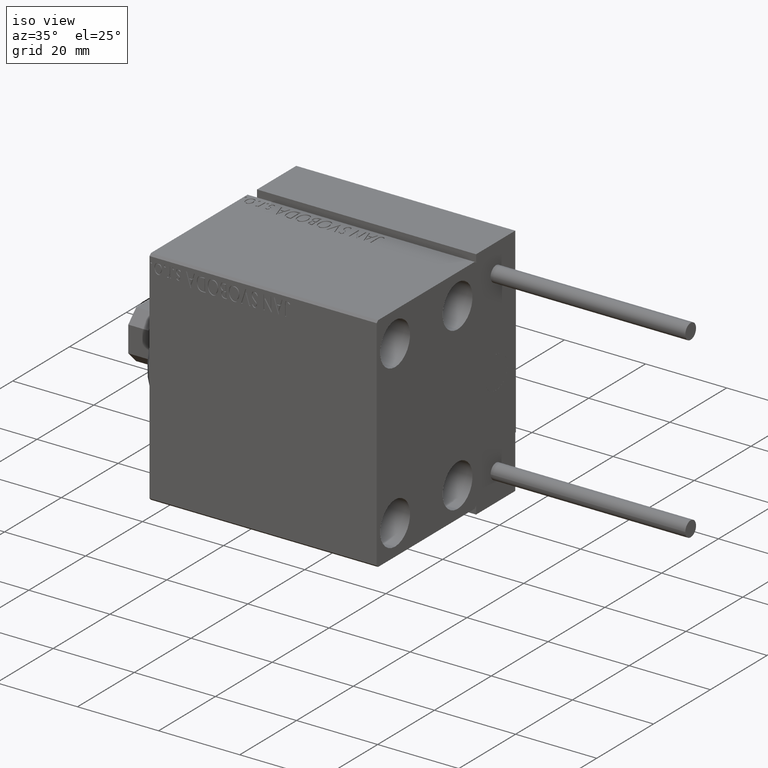
[diagram: clean part render]
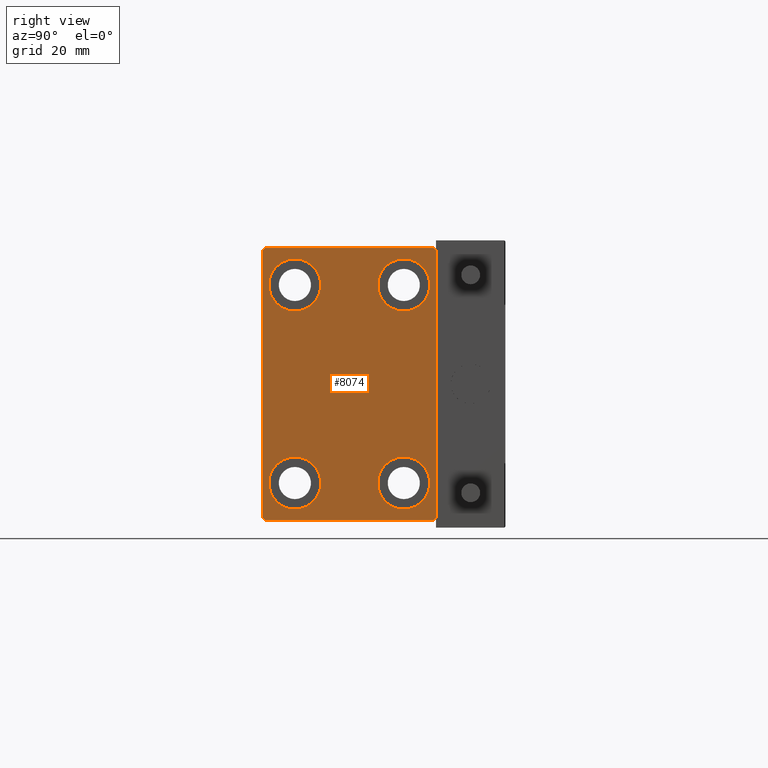
[diagram: tour spotlight — one face highlighted and labeled with its STEP entity id]
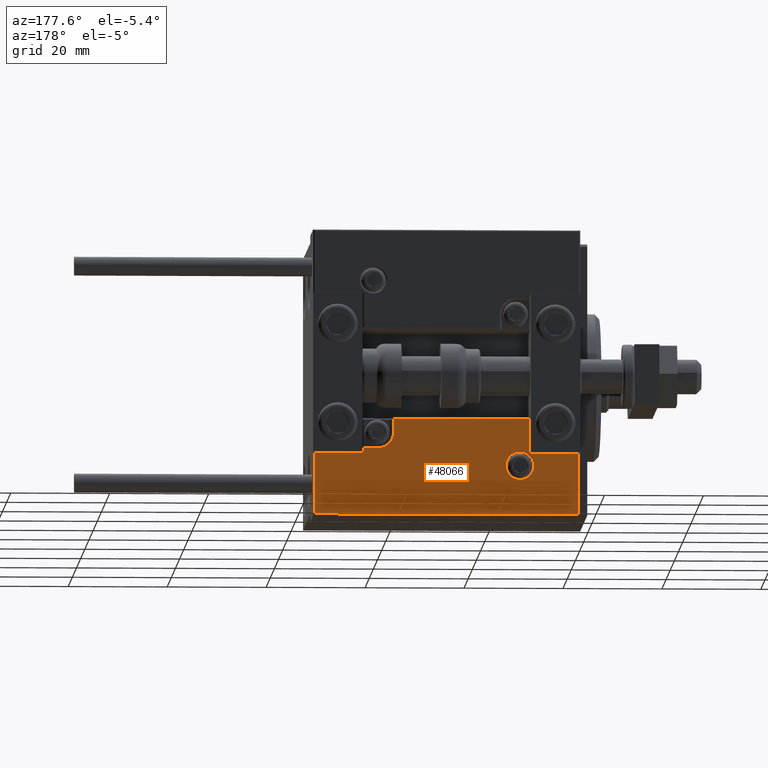
[diagram: tour spotlight — one face highlighted and labeled with its STEP entity id]
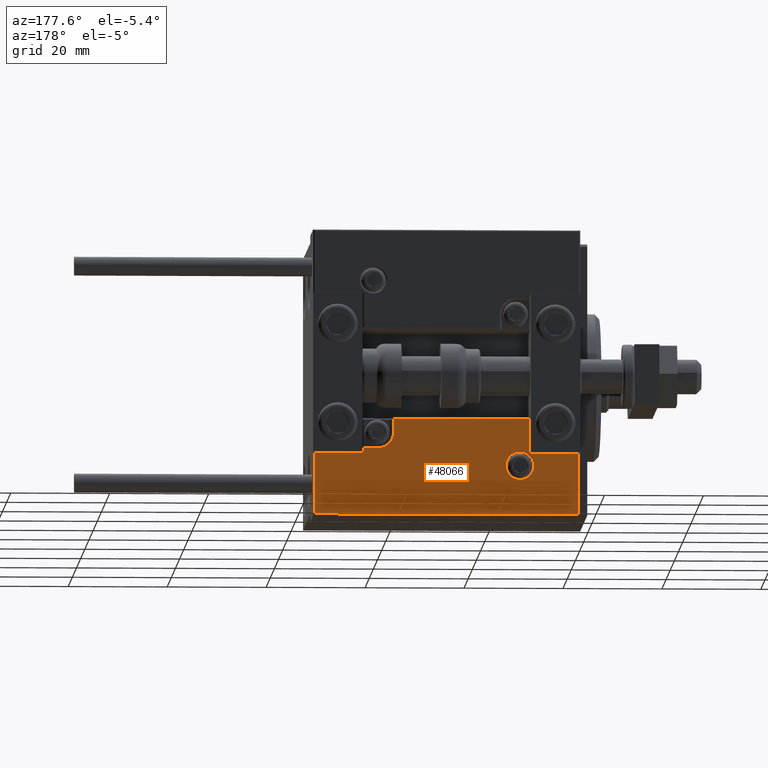
[diagram: tour spotlight — one face highlighted and labeled with its STEP entity id]
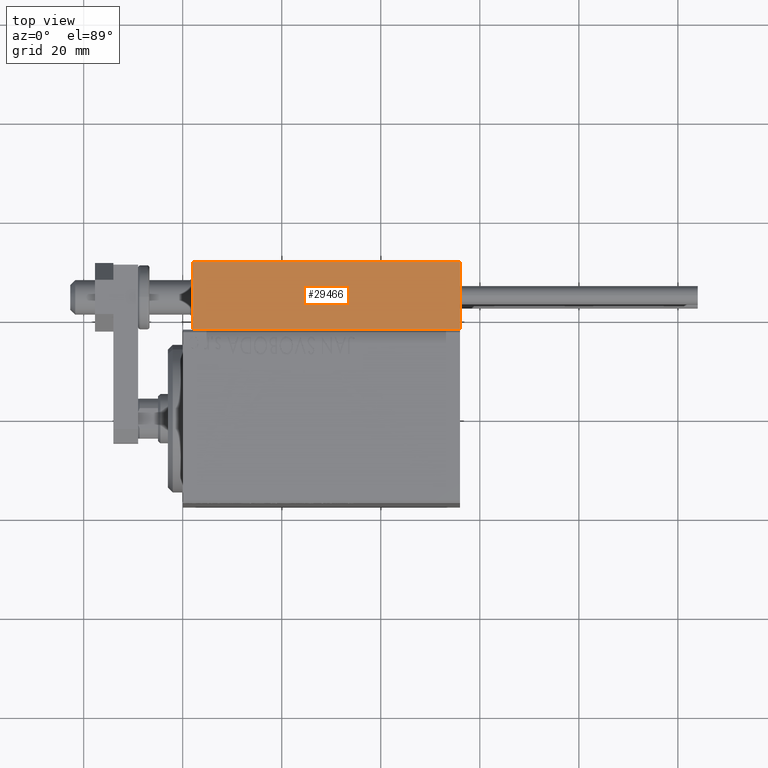
[diagram: tour spotlight — one face highlighted and labeled with its STEP entity id]
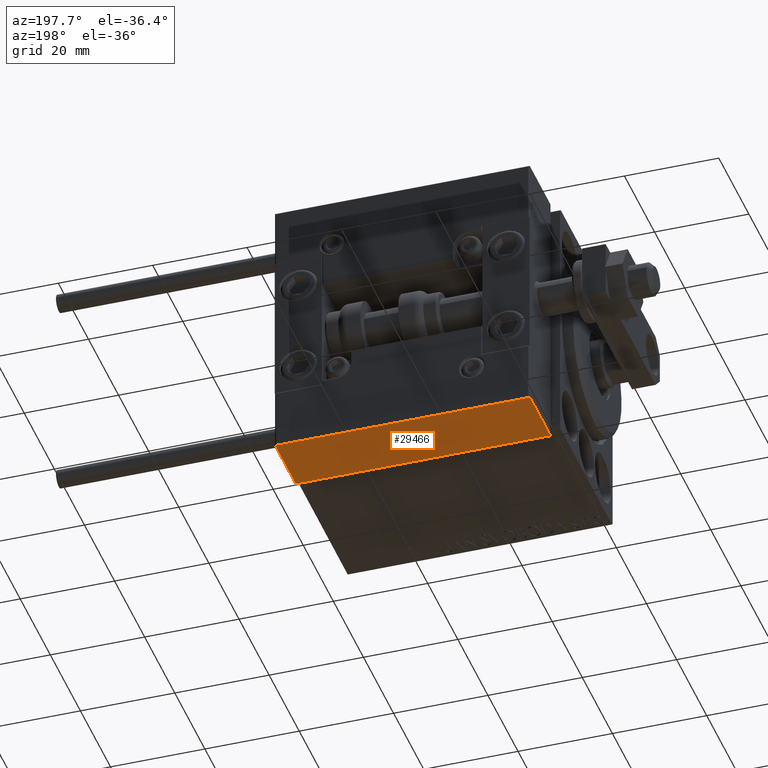
[diagram: tour spotlight — one face highlighted and labeled with its STEP entity id]
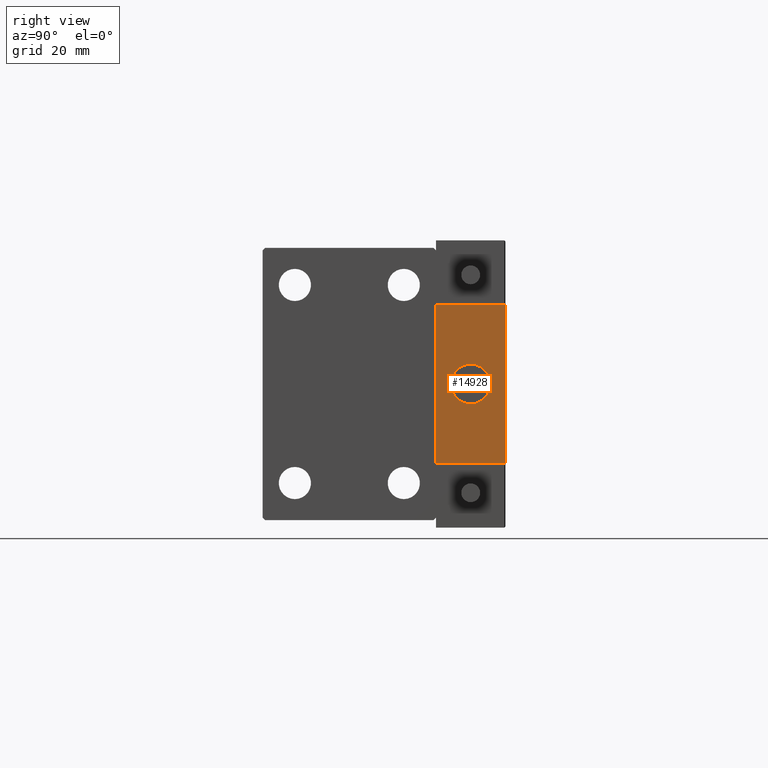
[diagram: tour spotlight — one face highlighted and labeled with its STEP entity id]
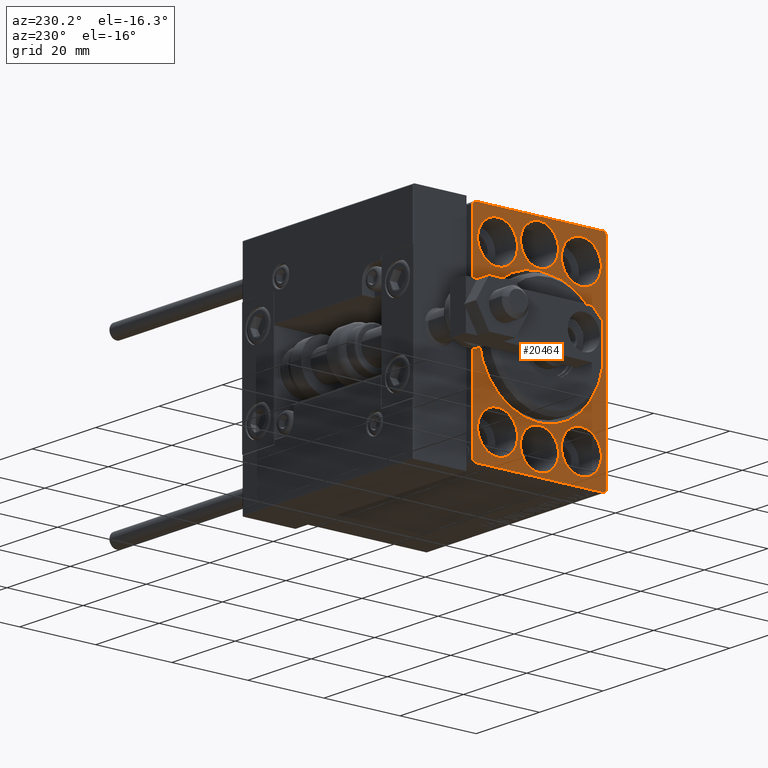
[diagram: tour spotlight — one face highlighted and labeled with its STEP entity id]
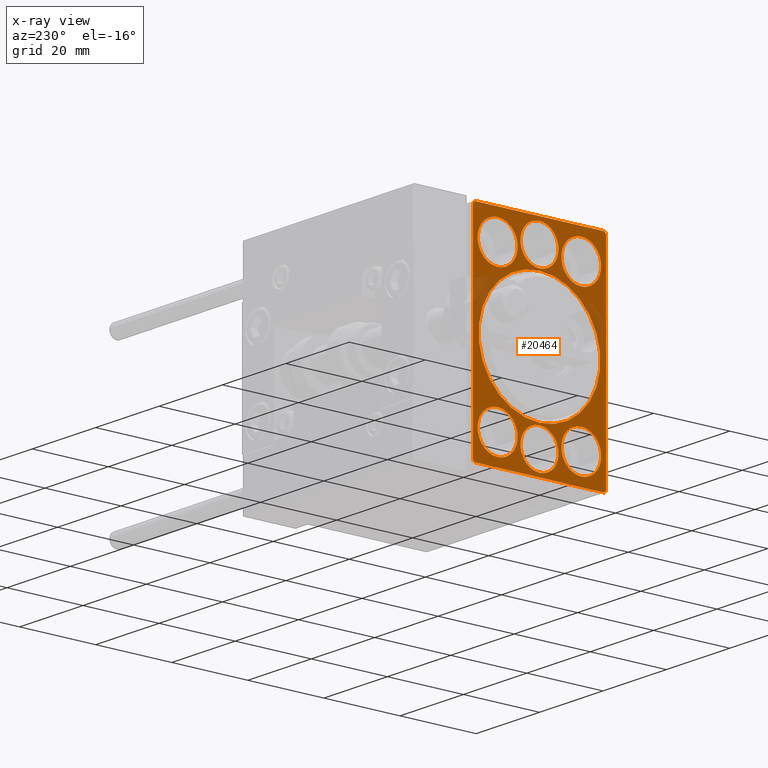
[diagram: x-ray of the same camera — body ghosted, this tour face saturated]
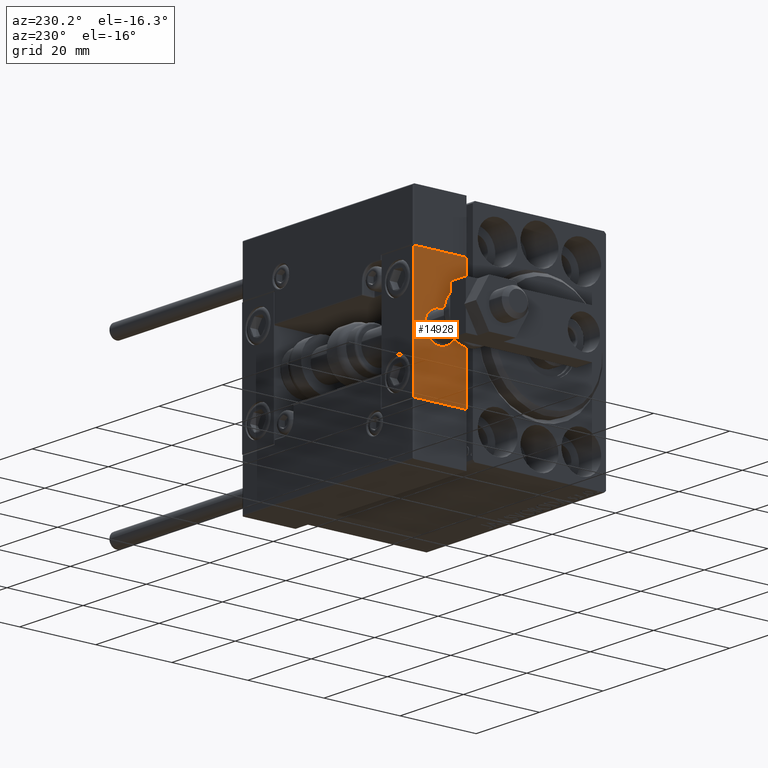
[diagram: tour spotlight — one face highlighted and labeled with its STEP entity id]
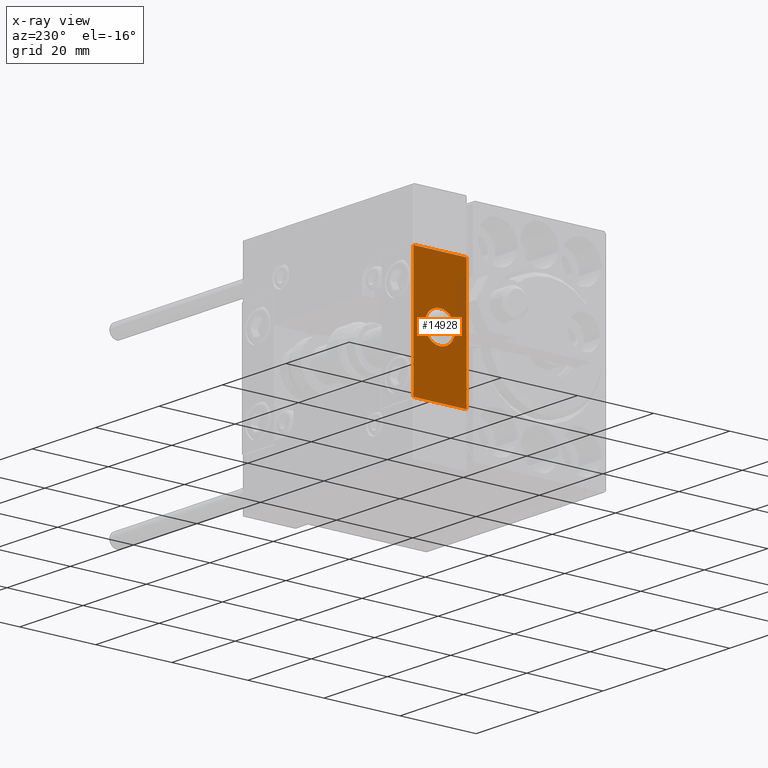
[diagram: x-ray of the same camera — body ghosted, this tour face saturated]
A machine part: a face-by-face anatomy tour. The part has 1281 B-rep faces; the first image is the clean iso view, then the 8 largest visible faces are spotlighted one at a time (largest first), each with its STEP entity span.

Face 1 — right view, entity #8074. In plain terms, the highlighted planar face has unit normal (1, 0, 0).
Definition (entity closure, byte-faithful):
#531 = DIRECTION ( 'NONE',  ( 0.000000000000000000, 1.000000000000000000, 0.000000000000000000 ) ) ;
#589 = ORIENTED_EDGE ( 'NONE', *, *, #48635, .T. ) ;
#686 = ORIENTED_EDGE ( 'NONE', *, *, #5286, .T. ) ;
#796 = CARTESIAN_POINT ( 'NONE',  ( 56.00000000000000000, 17.50000000000000000, 27.50000000000000355 ) ) ;
#1208 = LINE ( 'NONE', #31686, #33965 ) ;
#1373 = VERTEX_POINT ( 'NONE', #18597 ) ;
#1385 = DIRECTION ( 'NONE',  ( 0.000000000000000000, 0.000000000000000000, 1.000000000000000000 ) ) ;
#1498 = VERTEX_POINT ( 'NONE', #26447 ) ;
#1567 = CARTESIAN_POINT ( 'NONE',  ( 56.00000000000000000, 11.00000000000000355, -25.25000000000000000 ) ) ;
#1568 = CARTESIAN_POINT ( 'NONE',  ( 56.00000000000000000, 22.25000000000000355, 22.25000000000000355 ) ) ;
#1627 = AXIS2_PLACEMENT_3D ( 'NONE', #18992, #7571, #49906 ) ;
#1687 = EDGE_CURVE ( 'NONE', #7503, #1373, #17054, .T. ) ;
#1769 = ORIENTED_EDGE ( 'NONE', *, *, #26344, .T. ) ;
#2107 = CIRCLE ( 'NONE', #3768, 5.250000000000000888 ) ;
#2633 = EDGE_CURVE ( 'NONE', #1498, #47206, #12795, .T. ) ;
#2720 = LINE ( 'NONE', #10346, #39161 ) ;
#2909 = EDGE_CURVE ( 'NONE', #47206, #1498, #16841, .T. ) ;
#3223 = DIRECTION ( 'NONE',  ( 0.000000000000000000, -1.261617073437677752E-16, 1.000000000000000000 ) ) ;
#3768 = AXIS2_PLACEMENT_3D ( 'NONE', #11394, #18990, #34471 ) ;
#3936 = VECTOR ( 'NONE', #32543, 1000.000000000000114 ) ;
#4344 = DIRECTION ( 'NONE',  ( -1.000000000000000000, -0.000000000000000000, -0.000000000000000000 ) ) ;
#4346 = ORIENTED_EDGE ( 'NONE', *, *, #17290, .T. ) ;
#4955 = CARTESIAN_POINT ( 'NONE',  ( 56.00000000000000000, -17.50000000000000000, -26.99999999999999645 ) ) ;
#5242 = CARTESIAN_POINT ( 'NONE',  ( 56.00000000000000000, -17.50000000000000000, 26.99999999999998934 ) ) ;
#5286 = EDGE_CURVE ( 'NONE', #13045, #8376, #45011, .T. ) ;
#5574 = VECTOR ( 'NONE', #36676, 1000.000000000000114 ) ;
#5767 = EDGE_CURVE ( 'NONE', #48666, #13045, #31774, .T. ) ;
#5889 = CARTESIAN_POINT ( 'NONE',  ( 56.00000000000000000, -17.50000000000000000, 27.49999999999999645 ) ) ;
#6827 = PLANE ( 'NONE',  #1627 ) ;
#7503 = VERTEX_POINT ( 'NONE', #22662 ) ;
#7571 = DIRECTION ( 'NONE',  ( 1.000000000000000000, 0.000000000000000000, 0.000000000000000000 ) ) ;
#8074 = ADVANCED_FACE ( 'NONE', ( #38260, #10899, #49415, #27098, #42550 ), #6827, .T. ) ;
#8369 = VERTEX_POINT ( 'NONE', #11335 ) ;
#8376 = VERTEX_POINT ( 'NONE', #26037 ) ;
#8388 = DIRECTION ( 'NONE',  ( -1.000000000000000000, -0.000000000000000000, -0.000000000000000000 ) ) ;
#8525 = VERTEX_POINT ( 'NONE', #35675 ) ;
#8626 = CIRCLE ( 'NONE', #15886, 5.250000000000000888 ) ;
#9055 = CARTESIAN_POINT ( 'NONE',  ( 56.00000000000000000, -11.00000000000000355, 14.75000000000000000 ) ) ;
#9269 = CARTESIAN_POINT ( 'NONE',  ( 56.00000000000000000, -22.25000000000000355, -22.25000000000000355 ) ) ;
#10291 = CARTESIAN_POINT ( 'NONE',  ( 56.00000000000000000, 22.25000000000000711, -22.25000000000000711 ) ) ;
#10346 = CARTESIAN_POINT ( 'NONE',  ( 56.00000000000000000, 17.50000000000000711, -27.50000000000000355 ) ) ;
#10899 = FACE_BOUND ( 'NONE', #45958, .T. ) ;
#11335 = CARTESIAN_POINT ( 'NONE',  ( 56.00000000000000000, 11.00000000000000355, -14.75000000000000000 ) ) ;
#11394 = CARTESIAN_POINT ( 'NONE',  ( 56.00000000000000000, 11.00000000000000355, -20.00000000000000000 ) ) ;
#12447 = CARTESIAN_POINT ( 'NONE',  ( 56.00000000000000000, -11.00000000000000355, 20.00000000000000000 ) ) ;
#12552 = EDGE_LOOP ( 'NONE', ( #36455, #21146, #23777, #20922, #33463, #686, #34703, #46774 ) ) ;
#12730 = LINE ( 'NONE', #796, #19243 ) ;
#12795 = CIRCLE ( 'NONE', #31434, 5.250000000000000888 ) ;
#13002 = CARTESIAN_POINT ( 'NONE',  ( 56.00000000000000000, 17.00000000000000711, -27.50000000000000355 ) ) ;
#13045 = VERTEX_POINT ( 'NONE', #13002 ) ;
#14796 = CIRCLE ( 'NONE', #30190, 5.250000000000000888 ) ;
#15886 = AXIS2_PLACEMENT_3D ( 'NONE', #36152, #36403, #1385 ) ;
#16034 = CIRCLE ( 'NONE', #49202, 5.250000000000000888 ) ;
#16497 = EDGE_CURVE ( 'NONE', #8376, #7503, #2720, .T. ) ;
#16531 = DIRECTION ( 'NONE',  ( 0.000000000000000000, 0.000000000000000000, 1.000000000000000000 ) ) ;
#16547 = VERTEX_POINT ( 'NONE', #18696 ) ;
#16841 = CIRCLE ( 'NONE', #45159, 5.250000000000000888 ) ;
#17054 = LINE ( 'NONE', #1568, #3936 ) ;
#17117 = DIRECTION ( 'NONE',  ( -0.000000000000000000, 0.7071067811865474617, -0.7071067811865474617 ) ) ;
#17290 = EDGE_CURVE ( 'NONE', #16547, #34709, #14796, .T. ) ;
#17529 = ORIENTED_EDGE ( 'NONE', *, *, #2633, .T. ) ;
#17932 = ORIENTED_EDGE ( 'NONE', *, *, #45580, .T. ) ;
#18523 = AXIS2_PLACEMENT_3D ( 'NONE', #34807, #4344, #16531 ) ;
#18597 = CARTESIAN_POINT ( 'NONE',  ( 56.00000000000000000, 16.99999999999999289, 27.50000000000000355 ) ) ;
#18688 = VECTOR ( 'NONE', #17117, 1000.000000000000114 ) ;
#18696 = CARTESIAN_POINT ( 'NONE',  ( 56.00000000000000000, 11.00000000000000355, 25.25000000000000000 ) ) ;
#18990 = DIRECTION ( 'NONE',  ( -1.000000000000000000, -0.000000000000000000, -0.000000000000000000 ) ) ;
#18992 = CARTESIAN_POINT ( 'NONE',  ( 56.00000000000000000, 0.000000000000000000, 0.000000000000000000 ) ) ;
#19243 = VECTOR ( 'NONE', #28203, 1000.000000000000000 ) ;
#20717 = VERTEX_POINT ( 'NONE', #5242 ) ;
#20922 = ORIENTED_EDGE ( 'NONE', *, *, #41004, .T. ) ;
#21146 = ORIENTED_EDGE ( 'NONE', *, *, #49476, .T. ) ;
#21333 = CARTESIAN_POINT ( 'NONE',  ( 56.00000000000000000, -11.00000000000000355, -20.00000000000000000 ) ) ;
#21357 = DIRECTION ( 'NONE',  ( 0.000000000000000000, 0.000000000000000000, -1.000000000000000000 ) ) ;
#21622 = CARTESIAN_POINT ( 'NONE',  ( 56.00000000000000000, 11.00000000000000355, 20.00000000000000000 ) ) ;
#22127 = CARTESIAN_POINT ( 'NONE',  ( 56.00000000000000000, 11.00000000000000355, 20.00000000000000000 ) ) ;
#22662 = CARTESIAN_POINT ( 'NONE',  ( 56.00000000000000000, 17.50000000000000000, 26.99999999999999645 ) ) ;
#23777 = ORIENTED_EDGE ( 'NONE', *, *, #26010, .T. ) ;
#23840 = DIRECTION ( 'NONE',  ( 0.000000000000000000, 0.000000000000000000, 1.000000000000000000 ) ) ;
#23906 = CARTESIAN_POINT ( 'NONE',  ( 56.00000000000000000, -11.00000000000000355, 20.00000000000000000 ) ) ;
#23978 = VECTOR ( 'NONE', #21357, 1000.000000000000000 ) ;
#24306 = DIRECTION ( 'NONE',  ( 0.000000000000000000, -0.7071067811865474617, -0.7071067811865474617 ) ) ;
#24423 = LINE ( 'NONE', #5889, #23978 ) ;
#24520 = CARTESIAN_POINT ( 'NONE',  ( 56.00000000000000000, 11.00000000000000355, 14.75000000000000000 ) ) ;
#25677 = DIRECTION ( 'NONE',  ( 0.000000000000000000, 0.000000000000000000, 1.000000000000000000 ) ) ;
#25875 = DIRECTION ( 'NONE',  ( 0.000000000000000000, 0.000000000000000000, 1.000000000000000000 ) ) ;
#26010 = EDGE_CURVE ( 'NONE', #20717, #41040, #24423, .T. ) ;
#26037 = CARTESIAN_POINT ( 'NONE',  ( 56.00000000000000000, 17.50000000000000711, -27.00000000000000355 ) ) ;
#26344 = EDGE_CURVE ( 'NONE', #41351, #8369, #2107, .T. ) ;
#26447 = CARTESIAN_POINT ( 'NONE',  ( 56.00000000000000000, -11.00000000000000355, 25.25000000000000000 ) ) ;
#27098 = FACE_BOUND ( 'NONE', #34647, .T. ) ;
#28203 = DIRECTION ( 'NONE',  ( 0.000000000000000000, -1.000000000000000000, -1.982541115402065110E-16 ) ) ;
#28950 = DIRECTION ( 'NONE',  ( -1.000000000000000000, -0.000000000000000000, -0.000000000000000000 ) ) ;
#30053 = CARTESIAN_POINT ( 'NONE',  ( 56.00000000000000000, -11.00000000000000355, -14.75000000000000000 ) ) ;
#30190 = AXIS2_PLACEMENT_3D ( 'NONE', #22127, #37595, #25677 ) ;
#31434 = AXIS2_PLACEMENT_3D ( 'NONE', #23906, #47231, #38617 ) ;
#31686 = CARTESIAN_POINT ( 'NONE',  ( 56.00000000000000000, -22.24999999999999645, 22.24999999999999645 ) ) ;
#31774 = LINE ( 'NONE', #43149, #38002 ) ;
#31858 = EDGE_LOOP ( 'NONE', ( #1769, #42393 ) ) ;
#32536 = VERTEX_POINT ( 'NONE', #30053 ) ;
#32543 = DIRECTION ( 'NONE',  ( -0.000000000000000000, -0.7071067811865474617, 0.7071067811865474617 ) ) ;
#33463 = ORIENTED_EDGE ( 'NONE', *, *, #5767, .T. ) ;
#33778 = AXIS2_PLACEMENT_3D ( 'NONE', #21622, #34056, #34301 ) ;
#33957 = CARTESIAN_POINT ( 'NONE',  ( 56.00000000000000000, -11.00000000000000355, -25.25000000000000000 ) ) ;
#33965 = VECTOR ( 'NONE', #24306, 1000.000000000000114 ) ;
#34056 = DIRECTION ( 'NONE',  ( -1.000000000000000000, -0.000000000000000000, -0.000000000000000000 ) ) ;
#34301 = DIRECTION ( 'NONE',  ( 0.000000000000000000, 0.000000000000000000, 1.000000000000000000 ) ) ;
#34400 = ORIENTED_EDGE ( 'NONE', *, *, #43965, .T. ) ;
#34471 = DIRECTION ( 'NONE',  ( 0.000000000000000000, 0.000000000000000000, 1.000000000000000000 ) ) ;
#34647 = EDGE_LOOP ( 'NONE', ( #17932, #589 ) ) ;
#34703 = ORIENTED_EDGE ( 'NONE', *, *, #16497, .T. ) ;
#34709 = VERTEX_POINT ( 'NONE', #24520 ) ;
#34807 = CARTESIAN_POINT ( 'NONE',  ( 56.00000000000000000, -11.00000000000000355, -20.00000000000000000 ) ) ;
#35675 = CARTESIAN_POINT ( 'NONE',  ( 56.00000000000000000, -16.99999999999999289, 27.49999999999999645 ) ) ;
#36152 = CARTESIAN_POINT ( 'NONE',  ( 56.00000000000000000, 11.00000000000000355, -20.00000000000000000 ) ) ;
#36403 = DIRECTION ( 'NONE',  ( -1.000000000000000000, -0.000000000000000000, -0.000000000000000000 ) ) ;
#36455 = ORIENTED_EDGE ( 'NONE', *, *, #45459, .T. ) ;
#36553 = CARTESIAN_POINT ( 'NONE',  ( 56.00000000000000000, -16.99999999999999289, -27.50000000000000355 ) ) ;
#36676 = DIRECTION ( 'NONE',  ( -0.000000000000000000, 0.7071067811865474617, 0.7071067811865474617 ) ) ;
#37595 = DIRECTION ( 'NONE',  ( -1.000000000000000000, -0.000000000000000000, -0.000000000000000000 ) ) ;
#37613 = EDGE_LOOP ( 'NONE', ( #34400, #4346 ) ) ;
#38002 = VECTOR ( 'NONE', #531, 1000.000000000000000 ) ;
#38260 = FACE_BOUND ( 'NONE', #31858, .T. ) ;
#38617 = DIRECTION ( 'NONE',  ( 0.000000000000000000, 0.000000000000000000, 1.000000000000000000 ) ) ;
#39161 = VECTOR ( 'NONE', #3223, 1000.000000000000000 ) ;
#39434 = ORIENTED_EDGE ( 'NONE', *, *, #2909, .T. ) ;
#40388 = CIRCLE ( 'NONE', #18523, 5.250000000000000888 ) ;
#41004 = EDGE_CURVE ( 'NONE', #41040, #48666, #47791, .T. ) ;
#41040 = VERTEX_POINT ( 'NONE', #4955 ) ;
#41351 = VERTEX_POINT ( 'NONE', #1567 ) ;
#41574 = EDGE_CURVE ( 'NONE', #8369, #41351, #8626, .T. ) ;
#42393 = ORIENTED_EDGE ( 'NONE', *, *, #41574, .T. ) ;
#42550 = FACE_OUTER_BOUND ( 'NONE', #12552, .T. ) ;
#43149 = CARTESIAN_POINT ( 'NONE',  ( 56.00000000000000000, -17.50000000000000000, -27.50000000000000355 ) ) ;
#43495 = CIRCLE ( 'NONE', #33778, 5.250000000000000888 ) ;
#43965 = EDGE_CURVE ( 'NONE', #34709, #16547, #43495, .T. ) ;
#45011 = LINE ( 'NONE', #10291, #5574 ) ;
#45159 = AXIS2_PLACEMENT_3D ( 'NONE', #12447, #8388, #23840 ) ;
#45459 = EDGE_CURVE ( 'NONE', #1373, #8525, #12730, .T. ) ;
#45580 = EDGE_CURVE ( 'NONE', #49589, #32536, #16034, .T. ) ;
#45958 = EDGE_LOOP ( 'NONE', ( #39434, #17529 ) ) ;
#46774 = ORIENTED_EDGE ( 'NONE', *, *, #1687, .T. ) ;
#47206 = VERTEX_POINT ( 'NONE', #9055 ) ;
#47231 = DIRECTION ( 'NONE',  ( -1.000000000000000000, -0.000000000000000000, -0.000000000000000000 ) ) ;
#47791 = LINE ( 'NONE', #9269, #18688 ) ;
#48635 = EDGE_CURVE ( 'NONE', #32536, #49589, #40388, .T. ) ;
#48666 = VERTEX_POINT ( 'NONE', #36553 ) ;
#49202 = AXIS2_PLACEMENT_3D ( 'NONE', #21333, #28950, #25875 ) ;
#49415 = FACE_BOUND ( 'NONE', #37613, .T. ) ;
#49476 = EDGE_CURVE ( 'NONE', #8525, #20717, #1208, .T. ) ;
#49589 = VERTEX_POINT ( 'NONE', #33957 ) ;
#49906 = DIRECTION ( 'NONE',  ( 0.000000000000000000, 0.000000000000000000, -1.000000000000000000 ) ) ;

Face 2 — auxiliary view, entity #48066. In plain terms, the highlighted planar face has unit normal (0, 1, -0).
Definition (entity closure, byte-faithful):
#35 = VERTEX_POINT ( 'NONE', #35266 ) ;
#477 = CIRCLE ( 'NONE', #7768, 3.299999999999997158 ) ;
#690 = EDGE_CURVE ( 'NONE', #31334, #11501, #36596, .T. ) ;
#2070 = CARTESIAN_POINT ( 'NONE',  ( -26.69999999999993534, 19.70000000000002061, 14.00000000000000000 ) ) ;
#2115 = ORIENTED_EDGE ( 'NONE', *, *, #34549, .T. ) ;
#2308 = LINE ( 'NONE', #40619, #22313 ) ;
#2690 = ORIENTED_EDGE ( 'NONE', *, *, #690, .T. ) ;
#2988 = LINE ( 'NONE', #29894, #32387 ) ;
#3156 = AXIS2_PLACEMENT_3D ( 'NONE', #9297, #5224, #48065 ) ;
#3722 = DIRECTION ( 'NONE',  ( -8.006416042969869188E-16, -1.000000000000000000, 0.000000000000000000 ) ) ;
#3736 = VERTEX_POINT ( 'NONE', #30727 ) ;
#3888 = EDGE_CURVE ( 'NONE', #11501, #37730, #29177, .T. ) ;
#3985 = CARTESIAN_POINT ( 'NONE',  ( -26.69999999999994600, 7.300000000000005151, 14.00000000000000000 ) ) ;
#4266 = CARTESIAN_POINT ( 'NONE',  ( 10.69999999999999929, 0.3000000000000032085, 14.00000000000000000 ) ) ;
#4300 = EDGE_CURVE ( 'NONE', #18453, #29157, #32389, .T. ) ;
#5224 = DIRECTION ( 'NONE',  ( 0.000000000000000000, -0.000000000000000000, -1.000000000000000000 ) ) ;
#5229 = CARTESIAN_POINT ( 'NONE',  ( 10.69999999999999929, 3.000000000000003109, 14.00000000000000000 ) ) ;
#5454 = ORIENTED_EDGE ( 'NONE', *, *, #49575, .T. ) ;
#5477 = PLANE ( 'NONE',  #36351 ) ;
#7389 = LINE ( 'NONE', #39079, #41037 ) ;
#7538 = LINE ( 'NONE', #23006, #46800 ) ;
#7550 = DIRECTION ( 'NONE',  ( 0.000000000000000000, -1.000000000000000000, 0.000000000000000000 ) ) ;
#7677 = VERTEX_POINT ( 'NONE', #2070 ) ;
#7768 = AXIS2_PLACEMENT_3D ( 'NONE', #8974, #44427, #24424 ) ;
#8278 = CARTESIAN_POINT ( 'NONE',  ( 17.00000000000000000, 6.300000000000003375, 14.00000000000000000 ) ) ;
#8766 = LINE ( 'NONE', #24218, #26794 ) ;
#8974 = CARTESIAN_POINT ( 'NONE',  ( 13.99999999999999822, 3.000000000000002665, 14.00000000000000000 ) ) ;
#9021 = VECTOR ( 'NONE', #12374, 1000.000000000000000 ) ;
#9065 = CARTESIAN_POINT ( 'NONE',  ( 13.99999999999999822, 6.300000000000001599, 14.00000000000000000 ) ) ;
#9297 = CARTESIAN_POINT ( 'NONE',  ( -14.79999999999994920, 9.800000000000004263, 14.00000000000000000 ) ) ;
#9608 = VECTOR ( 'NONE', #43884, 1000.000000000000000 ) ;
#9796 = DIRECTION ( 'NONE',  ( -0.000000000000000000, 1.000000000000000000, -0.000000000000000000 ) ) ;
#10285 = FACE_BOUND ( 'NONE', #44056, .T. ) ;
#10577 = EDGE_CURVE ( 'NONE', #12828, #38291, #31579, .T. ) ;
#10600 = CARTESIAN_POINT ( 'NONE',  ( 26.70000000000006324, 19.70000000000001705, 14.00000000000000000 ) ) ;
#10992 = DIRECTION ( 'NONE',  ( 0.000000000000000000, -0.000000000000000000, -1.000000000000000000 ) ) ;
#11501 = VERTEX_POINT ( 'NONE', #39091 ) ;
#11815 = CARTESIAN_POINT ( 'NONE',  ( -16.69999999999999218, 0.3000000000000032085, 14.00000000000000000 ) ) ;
#12374 = DIRECTION ( 'NONE',  ( 1.000000000000000000, -1.734723475976796001E-16, 0.000000000000000000 ) ) ;
#12549 = DIRECTION ( 'NONE',  ( 1.000000000000000000, -0.000000000000000000, 0.000000000000000000 ) ) ;
#12828 = VERTEX_POINT ( 'NONE', #43540 ) ;
#13342 = DIRECTION ( 'NONE',  ( 1.000000000000000000, 0.000000000000000000, 0.000000000000000000 ) ) ;
#13812 = VERTEX_POINT ( 'NONE', #11815 ) ;
#15040 = ORIENTED_EDGE ( 'NONE', *, *, #4300, .T. ) ;
#15243 = VECTOR ( 'NONE', #42490, 1000.000000000000000 ) ;
#16354 = LINE ( 'NONE', #35635, #35956 ) ;
#16546 = ORIENTED_EDGE ( 'NONE', *, *, #10577, .T. ) ;
#17899 = CARTESIAN_POINT ( 'NONE',  ( 0.000000000000000000, 0.000000000000000000, 14.00000000000000000 ) ) ;
#18453 = VERTEX_POINT ( 'NONE', #4266 ) ;
#18560 = VERTEX_POINT ( 'NONE', #10600 ) ;
#21043 = EDGE_CURVE ( 'NONE', #13812, #18453, #16354, .T. ) ;
#22067 = CARTESIAN_POINT ( 'NONE',  ( 16.69999999999999929, 7.300000000000009592, 14.00000000000000000 ) ) ;
#22313 = VECTOR ( 'NONE', #44905, 1000.000000000000000 ) ;
#23006 = CARTESIAN_POINT ( 'NONE',  ( -26.69999999999994600, 7.000000000000005329, 14.00000000000000000 ) ) ;
#23333 = VECTOR ( 'NONE', #9796, 1000.000000000000000 ) ;
#23771 = CARTESIAN_POINT ( 'NONE',  ( 27.00000000000006395, 7.300000000000007816, 14.00000000000000000 ) ) ;
#24218 = CARTESIAN_POINT ( 'NONE',  ( 26.70000000000006324, 20.00000000000001776, 14.00000000000000000 ) ) ;
#24424 = DIRECTION ( 'NONE',  ( 1.000000000000000000, 0.000000000000000000, 0.000000000000000000 ) ) ;
#24454 = EDGE_CURVE ( 'NONE', #18560, #7677, #2308, .T. ) ;
#25738 = DIRECTION ( 'NONE',  ( -0.000000000000000000, 0.000000000000000000, 1.000000000000000000 ) ) ;
#25884 = ORIENTED_EDGE ( 'NONE', *, *, #3888, .T. ) ;
#26794 = VECTOR ( 'NONE', #39693, 1000.000000000000000 ) ;
#28801 = ORIENTED_EDGE ( 'NONE', *, *, #24454, .T. ) ;
#29099 = VERTEX_POINT ( 'NONE', #3985 ) ;
#29157 = VERTEX_POINT ( 'NONE', #39752 ) ;
#29177 = LINE ( 'NONE', #44371, #9608 ) ;
#29894 = CARTESIAN_POINT ( 'NONE',  ( -16.69999999999999218, 3.252606517456513302E-15, 14.00000000000000000 ) ) ;
#30727 = CARTESIAN_POINT ( 'NONE',  ( -16.69999999999999218, 7.300000000000003375, 14.00000000000000000 ) ) ;
#31334 = VERTEX_POINT ( 'NONE', #9065 ) ;
#31579 = CIRCLE ( 'NONE', #45337, 2.800000000000000266 ) ;
#32387 = VECTOR ( 'NONE', #7550, 1000.000000000000000 ) ;
#32389 = LINE ( 'NONE', #5229, #23333 ) ;
#33298 = ORIENTED_EDGE ( 'NONE', *, *, #40507, .T. ) ;
#34549 = EDGE_CURVE ( 'NONE', #7677, #29099, #7538, .T. ) ;
#35266 = CARTESIAN_POINT ( 'NONE',  ( 26.70000000000006324, 7.300000000000007816, 14.00000000000000000 ) ) ;
#35622 = CARTESIAN_POINT ( 'NONE',  ( -11.99999999999994849, 9.800000000000004263, 14.00000000000000000 ) ) ;
#35635 = CARTESIAN_POINT ( 'NONE',  ( 11.00000000000000000, 0.3000000000000032085, 14.00000000000000000 ) ) ;
#35715 = LINE ( 'NONE', #23771, #9021 ) ;
#35956 = VECTOR ( 'NONE', #12549, 1000.000000000000000 ) ;
#36351 = AXIS2_PLACEMENT_3D ( 'NONE', #17899, #25738, #13342 ) ;
#36596 = LINE ( 'NONE', #8278, #15243 ) ;
#37066 = EDGE_CURVE ( 'NONE', #38291, #12828, #40412, .T. ) ;
#37730 = VERTEX_POINT ( 'NONE', #22067 ) ;
#38291 = VERTEX_POINT ( 'NONE', #35622 ) ;
#38327 = DIRECTION ( 'NONE',  ( 1.000000000000000000, -1.734723475976815230E-16, 0.000000000000000000 ) ) ;
#39079 = CARTESIAN_POINT ( 'NONE',  ( -16.99999999999999289, 7.300000000000003375, 14.00000000000000000 ) ) ;
#39091 = CARTESIAN_POINT ( 'NONE',  ( 16.69999999999999929, 6.300000000000003375, 14.00000000000000000 ) ) ;
#39693 = DIRECTION ( 'NONE',  ( 0.000000000000000000, 1.000000000000000000, -0.000000000000000000 ) ) ;
#39752 = CARTESIAN_POINT ( 'NONE',  ( 10.69999999999999929, 3.000000000000003109, 14.00000000000000000 ) ) ;
#40412 = CIRCLE ( 'NONE', #3156, 2.800000000000000266 ) ;
#40507 = EDGE_CURVE ( 'NONE', #37730, #35, #35715, .T. ) ;
#40619 = CARTESIAN_POINT ( 'NONE',  ( -26.99999999999993605, 19.70000000000002061, 14.00000000000000000 ) ) ;
#40679 = ORIENTED_EDGE ( 'NONE', *, *, #37066, .T. ) ;
#41037 = VECTOR ( 'NONE', #38327, 1000.000000000000000 ) ;
#41062 = EDGE_CURVE ( 'NONE', #35, #18560, #8766, .T. ) ;
#41900 = DIRECTION ( 'NONE',  ( 1.000000000000000000, 0.000000000000000000, 0.000000000000000000 ) ) ;
#42032 = EDGE_CURVE ( 'NONE', #29157, #31334, #477, .T. ) ;
#42490 = DIRECTION ( 'NONE',  ( 1.000000000000000000, 5.782411586589357639E-16, -0.000000000000000000 ) ) ;
#43043 = EDGE_CURVE ( 'NONE', #29099, #3736, #7389, .T. ) ;
#43540 = CARTESIAN_POINT ( 'NONE',  ( -17.59999999999994813, 9.800000000000004263, 14.00000000000000000 ) ) ;
#43884 = DIRECTION ( 'NONE',  ( 9.912705577010318647E-16, 1.000000000000000000, 0.000000000000000000 ) ) ;
#43991 = ORIENTED_EDGE ( 'NONE', *, *, #21043, .T. ) ;
#44023 = FACE_OUTER_BOUND ( 'NONE', #46439, .T. ) ;
#44056 = EDGE_LOOP ( 'NONE', ( #40679, #16546 ) ) ;
#44371 = CARTESIAN_POINT ( 'NONE',  ( 16.69999999999999929, 7.000000000000009770, 14.00000000000000000 ) ) ;
#44427 = DIRECTION ( 'NONE',  ( 0.000000000000000000, -0.000000000000000000, -1.000000000000000000 ) ) ;
#44905 = DIRECTION ( 'NONE',  ( -1.000000000000000000, 6.424901762877063495E-17, -0.000000000000000000 ) ) ;
#45337 = AXIS2_PLACEMENT_3D ( 'NONE', #45706, #10992, #41900 ) ;
#45706 = CARTESIAN_POINT ( 'NONE',  ( -14.79999999999994920, 9.800000000000004263, 14.00000000000000000 ) ) ;
#46439 = EDGE_LOOP ( 'NONE', ( #5454, #43991, #15040, #46511, #2690, #25884, #33298, #47227, #28801, #2115, #48781 ) ) ;
#46511 = ORIENTED_EDGE ( 'NONE', *, *, #42032, .T. ) ;
#46800 = VECTOR ( 'NONE', #3722, 1000.000000000000000 ) ;
#47227 = ORIENTED_EDGE ( 'NONE', *, *, #41062, .T. ) ;
#48065 = DIRECTION ( 'NONE',  ( 1.000000000000000000, 0.000000000000000000, 0.000000000000000000 ) ) ;
#48066 = ADVANCED_FACE ( 'NONE', ( #10285, #44023 ), #5477, .T. ) ;
#48781 = ORIENTED_EDGE ( 'NONE', *, *, #43043, .T. ) ;
#49575 = EDGE_CURVE ( 'NONE', #3736, #13812, #2988, .T. ) ;

Face 3 — auxiliary view, entity #48066. In plain terms, the highlighted planar face has unit normal (-0, 1, -0).
Definition (entity closure, byte-faithful):
#35 = VERTEX_POINT ( 'NONE', #35266 ) ;
#477 = CIRCLE ( 'NONE', #7768, 3.299999999999997158 ) ;
#690 = EDGE_CURVE ( 'NONE', #31334, #11501, #36596, .T. ) ;
#2070 = CARTESIAN_POINT ( 'NONE',  ( -26.69999999999993534, 19.70000000000002061, 14.00000000000000000 ) ) ;
#2115 = ORIENTED_EDGE ( 'NONE', *, *, #34549, .T. ) ;
#2308 = LINE ( 'NONE', #40619, #22313 ) ;
#2690 = ORIENTED_EDGE ( 'NONE', *, *, #690, .T. ) ;
#2988 = LINE ( 'NONE', #29894, #32387 ) ;
#3156 = AXIS2_PLACEMENT_3D ( 'NONE', #9297, #5224, #48065 ) ;
#3722 = DIRECTION ( 'NONE',  ( -8.006416042969869188E-16, -1.000000000000000000, 0.000000000000000000 ) ) ;
#3736 = VERTEX_POINT ( 'NONE', #30727 ) ;
#3888 = EDGE_CURVE ( 'NONE', #11501, #37730, #29177, .T. ) ;
#3985 = CARTESIAN_POINT ( 'NONE',  ( -26.69999999999994600, 7.300000000000005151, 14.00000000000000000 ) ) ;
#4266 = CARTESIAN_POINT ( 'NONE',  ( 10.69999999999999929, 0.3000000000000032085, 14.00000000000000000 ) ) ;
#4300 = EDGE_CURVE ( 'NONE', #18453, #29157, #32389, .T. ) ;
#5224 = DIRECTION ( 'NONE',  ( 0.000000000000000000, -0.000000000000000000, -1.000000000000000000 ) ) ;
#5229 = CARTESIAN_POINT ( 'NONE',  ( 10.69999999999999929, 3.000000000000003109, 14.00000000000000000 ) ) ;
#5454 = ORIENTED_EDGE ( 'NONE', *, *, #49575, .T. ) ;
#5477 = PLANE ( 'NONE',  #36351 ) ;
#7389 = LINE ( 'NONE', #39079, #41037 ) ;
#7538 = LINE ( 'NONE', #23006, #46800 ) ;
#7550 = DIRECTION ( 'NONE',  ( 0.000000000000000000, -1.000000000000000000, 0.000000000000000000 ) ) ;
#7677 = VERTEX_POINT ( 'NONE', #2070 ) ;
#7768 = AXIS2_PLACEMENT_3D ( 'NONE', #8974, #44427, #24424 ) ;
#8278 = CARTESIAN_POINT ( 'NONE',  ( 17.00000000000000000, 6.300000000000003375, 14.00000000000000000 ) ) ;
#8766 = LINE ( 'NONE', #24218, #26794 ) ;
#8974 = CARTESIAN_POINT ( 'NONE',  ( 13.99999999999999822, 3.000000000000002665, 14.00000000000000000 ) ) ;
#9021 = VECTOR ( 'NONE', #12374, 1000.000000000000000 ) ;
#9065 = CARTESIAN_POINT ( 'NONE',  ( 13.99999999999999822, 6.300000000000001599, 14.00000000000000000 ) ) ;
#9297 = CARTESIAN_POINT ( 'NONE',  ( -14.79999999999994920, 9.800000000000004263, 14.00000000000000000 ) ) ;
#9608 = VECTOR ( 'NONE', #43884, 1000.000000000000000 ) ;
#9796 = DIRECTION ( 'NONE',  ( -0.000000000000000000, 1.000000000000000000, -0.000000000000000000 ) ) ;
#10285 = FACE_BOUND ( 'NONE', #44056, .T. ) ;
#10577 = EDGE_CURVE ( 'NONE', #12828, #38291, #31579, .T. ) ;
#10600 = CARTESIAN_POINT ( 'NONE',  ( 26.70000000000006324, 19.70000000000001705, 14.00000000000000000 ) ) ;
#10992 = DIRECTION ( 'NONE',  ( 0.000000000000000000, -0.000000000000000000, -1.000000000000000000 ) ) ;
#11501 = VERTEX_POINT ( 'NONE', #39091 ) ;
#11815 = CARTESIAN_POINT ( 'NONE',  ( -16.69999999999999218, 0.3000000000000032085, 14.00000000000000000 ) ) ;
#12374 = DIRECTION ( 'NONE',  ( 1.000000000000000000, -1.734723475976796001E-16, 0.000000000000000000 ) ) ;
#12549 = DIRECTION ( 'NONE',  ( 1.000000000000000000, -0.000000000000000000, 0.000000000000000000 ) ) ;
#12828 = VERTEX_POINT ( 'NONE', #43540 ) ;
#13342 = DIRECTION ( 'NONE',  ( 1.000000000000000000, 0.000000000000000000, 0.000000000000000000 ) ) ;
#13812 = VERTEX_POINT ( 'NONE', #11815 ) ;
#15040 = ORIENTED_EDGE ( 'NONE', *, *, #4300, .T. ) ;
#15243 = VECTOR ( 'NONE', #42490, 1000.000000000000000 ) ;
#16354 = LINE ( 'NONE', #35635, #35956 ) ;
#16546 = ORIENTED_EDGE ( 'NONE', *, *, #10577, .T. ) ;
#17899 = CARTESIAN_POINT ( 'NONE',  ( 0.000000000000000000, 0.000000000000000000, 14.00000000000000000 ) ) ;
#18453 = VERTEX_POINT ( 'NONE', #4266 ) ;
#18560 = VERTEX_POINT ( 'NONE', #10600 ) ;
#21043 = EDGE_CURVE ( 'NONE', #13812, #18453, #16354, .T. ) ;
#22067 = CARTESIAN_POINT ( 'NONE',  ( 16.69999999999999929, 7.300000000000009592, 14.00000000000000000 ) ) ;
#22313 = VECTOR ( 'NONE', #44905, 1000.000000000000000 ) ;
#23006 = CARTESIAN_POINT ( 'NONE',  ( -26.69999999999994600, 7.000000000000005329, 14.00000000000000000 ) ) ;
#23333 = VECTOR ( 'NONE', #9796, 1000.000000000000000 ) ;
#23771 = CARTESIAN_POINT ( 'NONE',  ( 27.00000000000006395, 7.300000000000007816, 14.00000000000000000 ) ) ;
#24218 = CARTESIAN_POINT ( 'NONE',  ( 26.70000000000006324, 20.00000000000001776, 14.00000000000000000 ) ) ;
#24424 = DIRECTION ( 'NONE',  ( 1.000000000000000000, 0.000000000000000000, 0.000000000000000000 ) ) ;
#24454 = EDGE_CURVE ( 'NONE', #18560, #7677, #2308, .T. ) ;
#25738 = DIRECTION ( 'NONE',  ( -0.000000000000000000, 0.000000000000000000, 1.000000000000000000 ) ) ;
#25884 = ORIENTED_EDGE ( 'NONE', *, *, #3888, .T. ) ;
#26794 = VECTOR ( 'NONE', #39693, 1000.000000000000000 ) ;
#28801 = ORIENTED_EDGE ( 'NONE', *, *, #24454, .T. ) ;
#29099 = VERTEX_POINT ( 'NONE', #3985 ) ;
#29157 = VERTEX_POINT ( 'NONE', #39752 ) ;
#29177 = LINE ( 'NONE', #44371, #9608 ) ;
#29894 = CARTESIAN_POINT ( 'NONE',  ( -16.69999999999999218, 3.252606517456513302E-15, 14.00000000000000000 ) ) ;
#30727 = CARTESIAN_POINT ( 'NONE',  ( -16.69999999999999218, 7.300000000000003375, 14.00000000000000000 ) ) ;
#31334 = VERTEX_POINT ( 'NONE', #9065 ) ;
#31579 = CIRCLE ( 'NONE', #45337, 2.800000000000000266 ) ;
#32387 = VECTOR ( 'NONE', #7550, 1000.000000000000000 ) ;
#32389 = LINE ( 'NONE', #5229, #23333 ) ;
#33298 = ORIENTED_EDGE ( 'NONE', *, *, #40507, .T. ) ;
#34549 = EDGE_CURVE ( 'NONE', #7677, #29099, #7538, .T. ) ;
#35266 = CARTESIAN_POINT ( 'NONE',  ( 26.70000000000006324, 7.300000000000007816, 14.00000000000000000 ) ) ;
#35622 = CARTESIAN_POINT ( 'NONE',  ( -11.99999999999994849, 9.800000000000004263, 14.00000000000000000 ) ) ;
#35635 = CARTESIAN_POINT ( 'NONE',  ( 11.00000000000000000, 0.3000000000000032085, 14.00000000000000000 ) ) ;
#35715 = LINE ( 'NONE', #23771, #9021 ) ;
#35956 = VECTOR ( 'NONE', #12549, 1000.000000000000000 ) ;
#36351 = AXIS2_PLACEMENT_3D ( 'NONE', #17899, #25738, #13342 ) ;
#36596 = LINE ( 'NONE', #8278, #15243 ) ;
#37066 = EDGE_CURVE ( 'NONE', #38291, #12828, #40412, .T. ) ;
#37730 = VERTEX_POINT ( 'NONE', #22067 ) ;
#38291 = VERTEX_POINT ( 'NONE', #35622 ) ;
#38327 = DIRECTION ( 'NONE',  ( 1.000000000000000000, -1.734723475976815230E-16, 0.000000000000000000 ) ) ;
#39079 = CARTESIAN_POINT ( 'NONE',  ( -16.99999999999999289, 7.300000000000003375, 14.00000000000000000 ) ) ;
#39091 = CARTESIAN_POINT ( 'NONE',  ( 16.69999999999999929, 6.300000000000003375, 14.00000000000000000 ) ) ;
#39693 = DIRECTION ( 'NONE',  ( 0.000000000000000000, 1.000000000000000000, -0.000000000000000000 ) ) ;
#39752 = CARTESIAN_POINT ( 'NONE',  ( 10.69999999999999929, 3.000000000000003109, 14.00000000000000000 ) ) ;
#40412 = CIRCLE ( 'NONE', #3156, 2.800000000000000266 ) ;
#40507 = EDGE_CURVE ( 'NONE', #37730, #35, #35715, .T. ) ;
#40619 = CARTESIAN_POINT ( 'NONE',  ( -26.99999999999993605, 19.70000000000002061, 14.00000000000000000 ) ) ;
#40679 = ORIENTED_EDGE ( 'NONE', *, *, #37066, .T. ) ;
#41037 = VECTOR ( 'NONE', #38327, 1000.000000000000000 ) ;
#41062 = EDGE_CURVE ( 'NONE', #35, #18560, #8766, .T. ) ;
#41900 = DIRECTION ( 'NONE',  ( 1.000000000000000000, 0.000000000000000000, 0.000000000000000000 ) ) ;
#42032 = EDGE_CURVE ( 'NONE', #29157, #31334, #477, .T. ) ;
#42490 = DIRECTION ( 'NONE',  ( 1.000000000000000000, 5.782411586589357639E-16, -0.000000000000000000 ) ) ;
#43043 = EDGE_CURVE ( 'NONE', #29099, #3736, #7389, .T. ) ;
#43540 = CARTESIAN_POINT ( 'NONE',  ( -17.59999999999994813, 9.800000000000004263, 14.00000000000000000 ) ) ;
#43884 = DIRECTION ( 'NONE',  ( 9.912705577010318647E-16, 1.000000000000000000, 0.000000000000000000 ) ) ;
#43991 = ORIENTED_EDGE ( 'NONE', *, *, #21043, .T. ) ;
#44023 = FACE_OUTER_BOUND ( 'NONE', #46439, .T. ) ;
#44056 = EDGE_LOOP ( 'NONE', ( #40679, #16546 ) ) ;
#44371 = CARTESIAN_POINT ( 'NONE',  ( 16.69999999999999929, 7.000000000000009770, 14.00000000000000000 ) ) ;
#44427 = DIRECTION ( 'NONE',  ( 0.000000000000000000, -0.000000000000000000, -1.000000000000000000 ) ) ;
#44905 = DIRECTION ( 'NONE',  ( -1.000000000000000000, 6.424901762877063495E-17, -0.000000000000000000 ) ) ;
#45337 = AXIS2_PLACEMENT_3D ( 'NONE', #45706, #10992, #41900 ) ;
#45706 = CARTESIAN_POINT ( 'NONE',  ( -14.79999999999994920, 9.800000000000004263, 14.00000000000000000 ) ) ;
#46439 = EDGE_LOOP ( 'NONE', ( #5454, #43991, #15040, #46511, #2690, #25884, #33298, #47227, #28801, #2115, #48781 ) ) ;
#46511 = ORIENTED_EDGE ( 'NONE', *, *, #42032, .T. ) ;
#46800 = VECTOR ( 'NONE', #3722, 1000.000000000000000 ) ;
#47227 = ORIENTED_EDGE ( 'NONE', *, *, #41062, .T. ) ;
#48065 = DIRECTION ( 'NONE',  ( 1.000000000000000000, 0.000000000000000000, 0.000000000000000000 ) ) ;
#48066 = ADVANCED_FACE ( 'NONE', ( #10285, #44023 ), #5477, .T. ) ;
#48781 = ORIENTED_EDGE ( 'NONE', *, *, #43043, .T. ) ;
#49575 = EDGE_CURVE ( 'NONE', #3736, #13812, #2988, .T. ) ;

Face 4 — top view, entity #29466. In plain terms, the highlighted planar face has unit normal (-0, -0, -1).
Definition (entity closure, byte-faithful):
#366 = VERTEX_POINT ( 'NONE', #42802 ) ;
#934 = DIRECTION ( 'NONE',  ( -0.000000000000000000, -0.000000000000000000, -1.000000000000000000 ) ) ;
#2611 = LINE ( 'NONE', #49253, #48021 ) ;
#3200 = ORIENTED_EDGE ( 'NONE', *, *, #32785, .T. ) ;
#6446 = ORIENTED_EDGE ( 'NONE', *, *, #28375, .F. ) ;
#6896 = DIRECTION ( 'NONE',  ( -1.000000000000000000, 6.424901762877062263E-17, 0.000000000000000000 ) ) ;
#7692 = FACE_OUTER_BOUND ( 'NONE', #9265, .T. ) ;
#9265 = EDGE_LOOP ( 'NONE', ( #6446, #39910, #35964, #3200 ) ) ;
#11102 = VECTOR ( 'NONE', #934, 1000.000000000000000 ) ;
#11773 = CARTESIAN_POINT ( 'NONE',  ( 27.00000000000006395, 20.00000000000001776, 0.000000000000000000 ) ) ;
#13122 = LINE ( 'NONE', #36442, #11102 ) ;
#14819 = PLANE ( 'NONE',  #38668 ) ;
#15265 = LINE ( 'NONE', #18070, #25673 ) ;
#18038 = EDGE_CURVE ( 'NONE', #48660, #32611, #2611, .T. ) ;
#18070 = CARTESIAN_POINT ( 'NONE',  ( 27.00000000000006395, 20.00000000000001776, 0.000000000000000000 ) ) ;
#21079 = CARTESIAN_POINT ( 'NONE',  ( 27.00000000000006395, 20.00000000000001776, 13.70000000000000107 ) ) ;
#22364 = CARTESIAN_POINT ( 'NONE',  ( 27.00000000000006395, 20.00000000000001776, 13.70000000000000107 ) ) ;
#23988 = EDGE_CURVE ( 'NONE', #366, #48660, #49732, .T. ) ;
#25673 = VECTOR ( 'NONE', #6896, 1000.000000000000000 ) ;
#28375 = EDGE_CURVE ( 'NONE', #366, #45177, #13122, .T. ) ;
#29466 = ADVANCED_FACE ( 'NONE', ( #7692 ), #14819, .F. ) ;
#32611 = VERTEX_POINT ( 'NONE', #11773 ) ;
#32785 = EDGE_CURVE ( 'NONE', #32611, #45177, #15265, .T. ) ;
#33572 = DIRECTION ( 'NONE',  ( -0.000000000000000000, -0.000000000000000000, -1.000000000000000000 ) ) ;
#34055 = DIRECTION ( 'NONE',  ( 1.000000000000000000, -6.424901762877063495E-17, -0.000000000000000000 ) ) ;
#34106 = DIRECTION ( 'NONE',  ( -6.424901762877063495E-17, -1.000000000000000000, 0.000000000000000000 ) ) ;
#35964 = ORIENTED_EDGE ( 'NONE', *, *, #18038, .T. ) ;
#36442 = CARTESIAN_POINT ( 'NONE',  ( -26.99999999999993605, 20.00000000000002132, 14.00000000000000000 ) ) ;
#38137 = CARTESIAN_POINT ( 'NONE',  ( 27.00000000000006395, 20.00000000000001776, 14.00000000000000000 ) ) ;
#38668 = AXIS2_PLACEMENT_3D ( 'NONE', #38137, #34106, #42931 ) ;
#39910 = ORIENTED_EDGE ( 'NONE', *, *, #23988, .T. ) ;
#39914 = CARTESIAN_POINT ( 'NONE',  ( -26.99999999999993605, 20.00000000000002132, 0.000000000000000000 ) ) ;
#40094 = VECTOR ( 'NONE', #34055, 1000.000000000000000 ) ;
#42802 = CARTESIAN_POINT ( 'NONE',  ( -26.99999999999993605, 20.00000000000002132, 13.70000000000000107 ) ) ;
#42931 = DIRECTION ( 'NONE',  ( 1.000000000000000000, -6.424901762877063495E-17, 0.000000000000000000 ) ) ;
#45177 = VERTEX_POINT ( 'NONE', #39914 ) ;
#48021 = VECTOR ( 'NONE', #33572, 1000.000000000000000 ) ;
#48660 = VERTEX_POINT ( 'NONE', #21079 ) ;
#49253 = CARTESIAN_POINT ( 'NONE',  ( 27.00000000000006395, 20.00000000000001776, 14.00000000000000000 ) ) ;
#49732 = LINE ( 'NONE', #22364, #40094 ) ;

Face 5 — auxiliary view, entity #29466. In plain terms, the highlighted planar face has unit normal (0, 0, 1).
Definition (entity closure, byte-faithful):
#366 = VERTEX_POINT ( 'NONE', #42802 ) ;
#934 = DIRECTION ( 'NONE',  ( -0.000000000000000000, -0.000000000000000000, -1.000000000000000000 ) ) ;
#2611 = LINE ( 'NONE', #49253, #48021 ) ;
#3200 = ORIENTED_EDGE ( 'NONE', *, *, #32785, .T. ) ;
#6446 = ORIENTED_EDGE ( 'NONE', *, *, #28375, .F. ) ;
#6896 = DIRECTION ( 'NONE',  ( -1.000000000000000000, 6.424901762877062263E-17, 0.000000000000000000 ) ) ;
#7692 = FACE_OUTER_BOUND ( 'NONE', #9265, .T. ) ;
#9265 = EDGE_LOOP ( 'NONE', ( #6446, #39910, #35964, #3200 ) ) ;
#11102 = VECTOR ( 'NONE', #934, 1000.000000000000000 ) ;
#11773 = CARTESIAN_POINT ( 'NONE',  ( 27.00000000000006395, 20.00000000000001776, 0.000000000000000000 ) ) ;
#13122 = LINE ( 'NONE', #36442, #11102 ) ;
#14819 = PLANE ( 'NONE',  #38668 ) ;
#15265 = LINE ( 'NONE', #18070, #25673 ) ;
#18038 = EDGE_CURVE ( 'NONE', #48660, #32611, #2611, .T. ) ;
#18070 = CARTESIAN_POINT ( 'NONE',  ( 27.00000000000006395, 20.00000000000001776, 0.000000000000000000 ) ) ;
#21079 = CARTESIAN_POINT ( 'NONE',  ( 27.00000000000006395, 20.00000000000001776, 13.70000000000000107 ) ) ;
#22364 = CARTESIAN_POINT ( 'NONE',  ( 27.00000000000006395, 20.00000000000001776, 13.70000000000000107 ) ) ;
#23988 = EDGE_CURVE ( 'NONE', #366, #48660, #49732, .T. ) ;
#25673 = VECTOR ( 'NONE', #6896, 1000.000000000000000 ) ;
#28375 = EDGE_CURVE ( 'NONE', #366, #45177, #13122, .T. ) ;
#29466 = ADVANCED_FACE ( 'NONE', ( #7692 ), #14819, .F. ) ;
#32611 = VERTEX_POINT ( 'NONE', #11773 ) ;
#32785 = EDGE_CURVE ( 'NONE', #32611, #45177, #15265, .T. ) ;
#33572 = DIRECTION ( 'NONE',  ( -0.000000000000000000, -0.000000000000000000, -1.000000000000000000 ) ) ;
#34055 = DIRECTION ( 'NONE',  ( 1.000000000000000000, -6.424901762877063495E-17, -0.000000000000000000 ) ) ;
#34106 = DIRECTION ( 'NONE',  ( -6.424901762877063495E-17, -1.000000000000000000, 0.000000000000000000 ) ) ;
#35964 = ORIENTED_EDGE ( 'NONE', *, *, #18038, .T. ) ;
#36442 = CARTESIAN_POINT ( 'NONE',  ( -26.99999999999993605, 20.00000000000002132, 14.00000000000000000 ) ) ;
#38137 = CARTESIAN_POINT ( 'NONE',  ( 27.00000000000006395, 20.00000000000001776, 14.00000000000000000 ) ) ;
#38668 = AXIS2_PLACEMENT_3D ( 'NONE', #38137, #34106, #42931 ) ;
#39910 = ORIENTED_EDGE ( 'NONE', *, *, #23988, .T. ) ;
#39914 = CARTESIAN_POINT ( 'NONE',  ( -26.99999999999993605, 20.00000000000002132, 0.000000000000000000 ) ) ;
#40094 = VECTOR ( 'NONE', #34055, 1000.000000000000000 ) ;
#42802 = CARTESIAN_POINT ( 'NONE',  ( -26.99999999999993605, 20.00000000000002132, 13.70000000000000107 ) ) ;
#42931 = DIRECTION ( 'NONE',  ( 1.000000000000000000, -6.424901762877063495E-17, 0.000000000000000000 ) ) ;
#45177 = VERTEX_POINT ( 'NONE', #39914 ) ;
#48021 = VECTOR ( 'NONE', #33572, 1000.000000000000000 ) ;
#48660 = VERTEX_POINT ( 'NONE', #21079 ) ;
#49253 = CARTESIAN_POINT ( 'NONE',  ( 27.00000000000006395, 20.00000000000001776, 14.00000000000000000 ) ) ;
#49732 = LINE ( 'NONE', #22364, #40094 ) ;

Face 6 — right view, entity #14928. In plain terms, the highlighted planar face has unit normal (-1, 0, 0).
Definition (entity closure, byte-faithful):
#1182 = VERTEX_POINT ( 'NONE', #22713 ) ;
#1390 = EDGE_CURVE ( 'NONE', #3372, #36006, #36366, .T. ) ;
#3134 = DIRECTION ( 'NONE',  ( 0.000000000000000000, 0.000000000000000000, 1.000000000000000000 ) ) ;
#3372 = VERTEX_POINT ( 'NONE', #11582 ) ;
#5957 = CARTESIAN_POINT ( 'NONE',  ( 10.00000000000000000, 0.000000000000000000, 0.000000000000000000 ) ) ;
#9558 = ORIENTED_EDGE ( 'NONE', *, *, #30819, .T. ) ;
#10232 = CIRCLE ( 'NONE', #15075, 4.000000000000000000 ) ;
#10469 = CARTESIAN_POINT ( 'NONE',  ( 10.00000000000000000, 7.000000000000000000, 15.99999999999999289 ) ) ;
#10834 = CARTESIAN_POINT ( 'NONE',  ( 10.00000000000000000, 0.000000000000000000, 4.000000000000000000 ) ) ;
#11457 = ORIENTED_EDGE ( 'NONE', *, *, #1390, .T. ) ;
#11582 = CARTESIAN_POINT ( 'NONE',  ( 10.00000000000000000, 4.898587196589412829E-16, -4.000000000000000000 ) ) ;
#13455 = LINE ( 'NONE', #48180, #41052 ) ;
#13568 = DIRECTION ( 'NONE',  ( -0.000000000000000000, 0.000000000000000000, 1.000000000000000000 ) ) ;
#14121 = EDGE_CURVE ( 'NONE', #32719, #1182, #42172, .T. ) ;
#14800 = DIRECTION ( 'NONE',  ( 0.000000000000000000, 0.000000000000000000, 1.000000000000000000 ) ) ;
#14928 = ADVANCED_FACE ( 'NONE', ( #49034, #40693 ), #37143, .F. ) ;
#15075 = AXIS2_PLACEMENT_3D ( 'NONE', #17870, #26714, #3134 ) ;
#15113 = VERTEX_POINT ( 'NONE', #19360 ) ;
#16738 = CARTESIAN_POINT ( 'NONE',  ( 10.00000000000000000, -7.000000000000000000, 15.99999999999999289 ) ) ;
#17668 = EDGE_LOOP ( 'NONE', ( #26587, #11457 ) ) ;
#17870 = CARTESIAN_POINT ( 'NONE',  ( 10.00000000000000000, 0.000000000000000000, 0.000000000000000000 ) ) ;
#19360 = CARTESIAN_POINT ( 'NONE',  ( 10.00000000000000000, -7.000000000000000000, -16.00000000000000711 ) ) ;
#19651 = CARTESIAN_POINT ( 'NONE',  ( 10.00000000000000000, 7.000000000000000000, -16.00000000000000711 ) ) ;
#20524 = AXIS2_PLACEMENT_3D ( 'NONE', #5957, #44738, #13568 ) ;
#20590 = ORIENTED_EDGE ( 'NONE', *, *, #34272, .T. ) ;
#21168 = VECTOR ( 'NONE', #38426, 1000.000000000000000 ) ;
#21851 = VERTEX_POINT ( 'NONE', #16738 ) ;
#22524 = VECTOR ( 'NONE', #24581, 1000.000000000000000 ) ;
#22713 = CARTESIAN_POINT ( 'NONE',  ( 10.00000000000000000, 7.000000000000000000, -16.00000000000000711 ) ) ;
#24331 = CARTESIAN_POINT ( 'NONE',  ( 10.00000000000000000, 7.000000000000000000, 15.99999999999999289 ) ) ;
#24509 = VECTOR ( 'NONE', #45716, 1000.000000000000000 ) ;
#24581 = DIRECTION ( 'NONE',  ( 0.000000000000000000, -1.000000000000000000, 0.000000000000000000 ) ) ;
#25120 = DIRECTION ( 'NONE',  ( 0.000000000000000000, 0.000000000000000000, -1.000000000000000000 ) ) ;
#25729 = EDGE_CURVE ( 'NONE', #36006, #3372, #10232, .T. ) ;
#26587 = ORIENTED_EDGE ( 'NONE', *, *, #25729, .T. ) ;
#26714 = DIRECTION ( 'NONE',  ( -1.000000000000000000, 0.000000000000000000, 0.000000000000000000 ) ) ;
#30819 = EDGE_CURVE ( 'NONE', #21851, #15113, #13455, .T. ) ;
#31128 = EDGE_LOOP ( 'NONE', ( #9558, #35823, #31394, #20590 ) ) ;
#31394 = ORIENTED_EDGE ( 'NONE', *, *, #14121, .F. ) ;
#31594 = LINE ( 'NONE', #19651, #21168 ) ;
#32719 = VERTEX_POINT ( 'NONE', #10469 ) ;
#34272 = EDGE_CURVE ( 'NONE', #32719, #21851, #44829, .T. ) ;
#34730 = AXIS2_PLACEMENT_3D ( 'NONE', #41903, #49020, #14800 ) ;
#35823 = ORIENTED_EDGE ( 'NONE', *, *, #40842, .F. ) ;
#36006 = VERTEX_POINT ( 'NONE', #10834 ) ;
#36366 = CIRCLE ( 'NONE', #34730, 4.000000000000000000 ) ;
#37143 = PLANE ( 'NONE',  #20524 ) ;
#38373 = CARTESIAN_POINT ( 'NONE',  ( 10.00000000000000000, 7.000000000000000000, 15.99999999999999289 ) ) ;
#38426 = DIRECTION ( 'NONE',  ( 0.000000000000000000, -1.000000000000000000, 0.000000000000000000 ) ) ;
#40693 = FACE_OUTER_BOUND ( 'NONE', #31128, .T. ) ;
#40842 = EDGE_CURVE ( 'NONE', #1182, #15113, #31594, .T. ) ;
#41052 = VECTOR ( 'NONE', #25120, 1000.000000000000000 ) ;
#41903 = CARTESIAN_POINT ( 'NONE',  ( 10.00000000000000000, 0.000000000000000000, 0.000000000000000000 ) ) ;
#42172 = LINE ( 'NONE', #38373, #24509 ) ;
#44738 = DIRECTION ( 'NONE',  ( -1.000000000000000000, 0.000000000000000000, -0.000000000000000000 ) ) ;
#44829 = LINE ( 'NONE', #24331, #22524 ) ;
#45716 = DIRECTION ( 'NONE',  ( 0.000000000000000000, 0.000000000000000000, -1.000000000000000000 ) ) ;
#48180 = CARTESIAN_POINT ( 'NONE',  ( 10.00000000000000000, -7.000000000000000000, 15.99999999999999289 ) ) ;
#49020 = DIRECTION ( 'NONE',  ( -1.000000000000000000, 0.000000000000000000, 0.000000000000000000 ) ) ;
#49034 = FACE_BOUND ( 'NONE', #17668, .T. ) ;

Face 7 — auxiliary view, entity #20464. An x-ray twin of the same camera follows (body ghosted, this face saturated) — the face is partly hidden behind the body. In plain terms, the highlighted planar face has unit normal (1, 0, 0).
Definition (entity closure, byte-faithful):
#6 = CARTESIAN_POINT ( 'NONE',  ( 0.000000000000000000, 11.00000000000000355, 25.25000000000000000 ) ) ;
#620 = VERTEX_POINT ( 'NONE', #13027 ) ;
#1436 = VECTOR ( 'NONE', #17241, 1000.000000000000000 ) ;
#2193 = CARTESIAN_POINT ( 'NONE',  ( 0.000000000000000000, 11.00000000000000355, 20.00000000000000000 ) ) ;
#2292 = FACE_BOUND ( 'NONE', #13734, .T. ) ;
#2346 = DIRECTION ( 'NONE',  ( 0.000000000000000000, 0.000000000000000000, -1.000000000000000000 ) ) ;
#2348 = EDGE_CURVE ( 'NONE', #37369, #620, #21686, .T. ) ;
#2372 = EDGE_LOOP ( 'NONE', ( #3629, #42532 ) ) ;
#2993 = EDGE_CURVE ( 'NONE', #40793, #43162, #40311, .T. ) ;
#3117 = DIRECTION ( 'NONE',  ( -1.000000000000000000, 0.000000000000000000, 0.000000000000000000 ) ) ;
#3378 = VERTEX_POINT ( 'NONE', #27034 ) ;
#3629 = ORIENTED_EDGE ( 'NONE', *, *, #35006, .F. ) ;
#4094 = DIRECTION ( 'NONE',  ( 0.000000000000000000, 0.000000000000000000, 1.000000000000000000 ) ) ;
#5489 = DIRECTION ( 'NONE',  ( -0.000000000000000000, 0.7071067811865474617, 0.7071067811865474617 ) ) ;
#5719 = VERTEX_POINT ( 'NONE', #39105 ) ;
#6013 = DIRECTION ( 'NONE',  ( 0.000000000000000000, 0.000000000000000000, 1.000000000000000000 ) ) ;
#6108 = FACE_BOUND ( 'NONE', #45192, .T. ) ;
#6386 = VERTEX_POINT ( 'NONE', #35892 ) ;
#6427 = CARTESIAN_POINT ( 'NONE',  ( 0.000000000000000000, 11.00000000000000355, -20.00000000000000000 ) ) ;
#6558 = EDGE_CURVE ( 'NONE', #49454, #34078, #38046, .T. ) ;
#6609 = EDGE_CURVE ( 'NONE', #620, #37369, #45308, .T. ) ;
#6618 = LINE ( 'NONE', #49190, #39697 ) ;
#6788 = AXIS2_PLACEMENT_3D ( 'NONE', #48941, #21083, #37045 ) ;
#7267 = CIRCLE ( 'NONE', #20207, 5.000000000000000888 ) ;
#7572 = EDGE_CURVE ( 'NONE', #8063, #44854, #7267, .T. ) ;
#7573 = VERTEX_POINT ( 'NONE', #40134 ) ;
#7720 = DIRECTION ( 'NONE',  ( 0.000000000000000000, 0.000000000000000000, 1.000000000000000000 ) ) ;
#8063 = VERTEX_POINT ( 'NONE', #26851 ) ;
#8367 = CARTESIAN_POINT ( 'NONE',  ( 0.000000000000000000, 0.000000000000000000, 16.00000000000001421 ) ) ;
#9471 = EDGE_CURVE ( 'NONE', #40793, #7573, #32629, .T. ) ;
#9547 = CARTESIAN_POINT ( 'NONE',  ( 0.000000000000000000, -1.836970198721029589E-15, -16.49999999999999645 ) ) ;
#9735 = VERTEX_POINT ( 'NONE', #24691 ) ;
#10374 = CIRCLE ( 'NONE', #38701, 5.250000000000000888 ) ;
#10504 = ORIENTED_EDGE ( 'NONE', *, *, #7572, .F. ) ;
#10681 = PLANE ( 'NONE',  #6788 ) ;
#10945 = EDGE_CURVE ( 'NONE', #22844, #5719, #39457, .T. ) ;
#10993 = ORIENTED_EDGE ( 'NONE', *, *, #6609, .F. ) ;
#11043 = EDGE_LOOP ( 'NONE', ( #33811, #39173 ) ) ;
#11162 = CARTESIAN_POINT ( 'NONE',  ( 0.000000000000000000, 17.50000000000000711, -27.00000000000000355 ) ) ;
#11295 = CIRCLE ( 'NONE', #21825, 5.000000000000000888 ) ;
#11312 = EDGE_CURVE ( 'NONE', #9735, #39419, #30893, .T. ) ;
#12232 = CARTESIAN_POINT ( 'NONE',  ( 0.000000000000000000, 11.00000000000000355, -20.00000000000000000 ) ) ;
#12749 = CIRCLE ( 'NONE', #41070, 5.250000000000000888 ) ;
#13027 = CARTESIAN_POINT ( 'NONE',  ( 0.000000000000000000, -11.00000000000000355, 25.25000000000000000 ) ) ;
#13072 = DIRECTION ( 'NONE',  ( -1.000000000000000000, 0.000000000000000000, 0.000000000000000000 ) ) ;
#13316 = DIRECTION ( 'NONE',  ( -1.000000000000000000, 0.000000000000000000, 0.000000000000000000 ) ) ;
#13339 = DIRECTION ( 'NONE',  ( -0.000000000000000000, 0.7071067811865474617, -0.7071067811865474617 ) ) ;
#13734 = EDGE_LOOP ( 'NONE', ( #43910, #26752 ) ) ;
#13796 = DIRECTION ( 'NONE',  ( 0.000000000000000000, 0.000000000000000000, 1.000000000000000000 ) ) ;
#14029 = CARTESIAN_POINT ( 'NONE',  ( 0.000000000000000000, 0.000000000000000000, 0.000000000000000000 ) ) ;
#14294 = DIRECTION ( 'NONE',  ( 0.000000000000000000, 0.000000000000000000, 1.000000000000000000 ) ) ;
#14967 = CARTESIAN_POINT ( 'NONE',  ( 0.000000000000000000, 11.00000000000000355, -14.75000000000000000 ) ) ;
#15069 = CARTESIAN_POINT ( 'NONE',  ( 0.000000000000000000, -1.836970198721029589E-15, 26.50000000000000000 ) ) ;
#15146 = VECTOR ( 'NONE', #26619, 1000.000000000000114 ) ;
#15492 = VECTOR ( 'NONE', #35930, 1000.000000000000000 ) ;
#15961 = CARTESIAN_POINT ( 'NONE',  ( 0.000000000000000000, -16.99999999999999289, -27.50000000000000355 ) ) ;
#16191 = AXIS2_PLACEMENT_3D ( 'NONE', #6427, #29020, #14294 ) ;
#16932 = ORIENTED_EDGE ( 'NONE', *, *, #31827, .T. ) ;
#17241 = DIRECTION ( 'NONE',  ( 0.000000000000000000, -1.000000000000000000, -1.982541115402065110E-16 ) ) ;
#17278 = FACE_BOUND ( 'NONE', #40847, .T. ) ;
#17355 = CARTESIAN_POINT ( 'NONE',  ( 0.000000000000000000, -1.836970198721029589E-15, 21.50000000000000000 ) ) ;
#17572 = DIRECTION ( 'NONE',  ( 1.000000000000000000, 0.000000000000000000, 0.000000000000000000 ) ) ;
#18260 = CIRCLE ( 'NONE', #46592, 5.000000000000000888 ) ;
#18265 = FACE_BOUND ( 'NONE', #11043, .T. ) ;
#18346 = VERTEX_POINT ( 'NONE', #28925 ) ;
#18652 = CIRCLE ( 'NONE', #28419, 5.250000000000000888 ) ;
#19191 = VECTOR ( 'NONE', #33386, 1000.000000000000000 ) ;
#19211 = ORIENTED_EDGE ( 'NONE', *, *, #34158, .T. ) ;
#19231 = DIRECTION ( 'NONE',  ( -1.000000000000000000, 0.000000000000000000, 0.000000000000000000 ) ) ;
#19514 = LINE ( 'NONE', #15961, #44389 ) ;
#19730 = DIRECTION ( 'NONE',  ( 0.000000000000000000, 0.000000000000000000, 1.000000000000000000 ) ) ;
#19911 = ORIENTED_EDGE ( 'NONE', *, *, #40078, .F. ) ;
#20099 = ORIENTED_EDGE ( 'NONE', *, *, #10945, .F. ) ;
#20207 = AXIS2_PLACEMENT_3D ( 'NONE', #32304, #20859, #47736 ) ;
#20444 = CARTESIAN_POINT ( 'NONE',  ( 0.000000000000000000, -17.50000000000000000, -27.50000000000000355 ) ) ;
#20464 = ADVANCED_FACE ( 'NONE', ( #6108, #2292, #48447, #18265, #21331, #17278, #40844, #49185 ), #10681, .F. ) ;
#20653 = CARTESIAN_POINT ( 'NONE',  ( 0.000000000000000000, 11.00000000000000355, 20.00000000000000000 ) ) ;
#20723 = ORIENTED_EDGE ( 'NONE', *, *, #44846, .T. ) ;
#20859 = DIRECTION ( 'NONE',  ( -1.000000000000000000, 0.000000000000000000, 0.000000000000000000 ) ) ;
#20903 = DIRECTION ( 'NONE',  ( -1.000000000000000000, 0.000000000000000000, 0.000000000000000000 ) ) ;
#21046 = CARTESIAN_POINT ( 'NONE',  ( 0.000000000000000000, 17.50000000000000000, 27.50000000000000355 ) ) ;
#21083 = DIRECTION ( 'NONE',  ( 1.000000000000000000, 0.000000000000000000, 0.000000000000000000 ) ) ;
#21208 = LINE ( 'NONE', #44024, #19191 ) ;
#21331 = FACE_BOUND ( 'NONE', #41719, .T. ) ;
#21686 = CIRCLE ( 'NONE', #28175, 5.250000000000000888 ) ;
#21825 = AXIS2_PLACEMENT_3D ( 'NONE', #33573, #36379, #13796 ) ;
#22119 = EDGE_CURVE ( 'NONE', #23716, #3378, #41637, .T. ) ;
#22299 = CARTESIAN_POINT ( 'NONE',  ( 0.000000000000000000, -16.99999999999999289, 27.49999999999999645 ) ) ;
#22844 = VERTEX_POINT ( 'NONE', #48290 ) ;
#23716 = VERTEX_POINT ( 'NONE', #15069 ) ;
#23815 = ORIENTED_EDGE ( 'NONE', *, *, #39247, .F. ) ;
#24691 = CARTESIAN_POINT ( 'NONE',  ( 0.000000000000000000, 1.959434878635766709E-15, -16.00000000000001421 ) ) ;
#24848 = EDGE_CURVE ( 'NONE', #3378, #23716, #18260, .T. ) ;
#25007 = DIRECTION ( 'NONE',  ( 0.000000000000000000, 0.000000000000000000, -1.000000000000000000 ) ) ;
#25781 = VECTOR ( 'NONE', #5489, 1000.000000000000114 ) ;
#25813 = VERTEX_POINT ( 'NONE', #27207 ) ;
#26619 = DIRECTION ( 'NONE',  ( 0.000000000000000000, -0.7071067811865474617, -0.7071067811865474617 ) ) ;
#26746 = VECTOR ( 'NONE', #13339, 1000.000000000000114 ) ;
#26752 = ORIENTED_EDGE ( 'NONE', *, *, #24848, .F. ) ;
#26851 = CARTESIAN_POINT ( 'NONE',  ( 0.000000000000000000, -1.224646799147353256E-15, -26.50000000000000000 ) ) ;
#26988 = DIRECTION ( 'NONE',  ( 0.000000000000000000, 0.000000000000000000, 1.000000000000000000 ) ) ;
#27034 = CARTESIAN_POINT ( 'NONE',  ( 0.000000000000000000, -1.224646799147353256E-15, 16.49999999999999645 ) ) ;
#27207 = CARTESIAN_POINT ( 'NONE',  ( 0.000000000000000000, 17.50000000000000711, -27.00000000000000355 ) ) ;
#28175 = AXIS2_PLACEMENT_3D ( 'NONE', #44485, #13316, #32841 ) ;
#28419 = AXIS2_PLACEMENT_3D ( 'NONE', #20653, #20903, #35894 ) ;
#28826 = DIRECTION ( 'NONE',  ( 1.000000000000000000, 0.000000000000000000, 0.000000000000000000 ) ) ;
#28903 = ORIENTED_EDGE ( 'NONE', *, *, #34636, .T. ) ;
#28925 = CARTESIAN_POINT ( 'NONE',  ( 0.000000000000000000, -17.50000000000000000, -26.99999999999999645 ) ) ;
#29019 = EDGE_LOOP ( 'NONE', ( #29038, #28903, #41044, #43388, #23815, #16932, #20099, #19211 ) ) ;
#29020 = DIRECTION ( 'NONE',  ( -1.000000000000000000, 0.000000000000000000, 0.000000000000000000 ) ) ;
#29038 = ORIENTED_EDGE ( 'NONE', *, *, #31359, .F. ) ;
#29297 = AXIS2_PLACEMENT_3D ( 'NONE', #14029, #17572, #2346 ) ;
#29409 = CARTESIAN_POINT ( 'NONE',  ( 0.000000000000000000, -1.836970198721029589E-15, 21.50000000000000000 ) ) ;
#29536 = VERTEX_POINT ( 'NONE', #47490 ) ;
#30018 = CARTESIAN_POINT ( 'NONE',  ( 0.000000000000000000, -11.00000000000000355, 20.00000000000000000 ) ) ;
#30097 = VERTEX_POINT ( 'NONE', #45612 ) ;
#30189 = LINE ( 'NONE', #11162, #15146 ) ;
#30199 = DIRECTION ( 'NONE',  ( 0.000000000000000000, -1.261617073437677752E-16, 1.000000000000000000 ) ) ;
#30560 = CARTESIAN_POINT ( 'NONE',  ( 0.000000000000000000, -11.00000000000000355, -20.00000000000000000 ) ) ;
#30572 = CARTESIAN_POINT ( 'NONE',  ( 0.000000000000000000, 16.99999999999999289, 27.50000000000000355 ) ) ;
#30893 = CIRCLE ( 'NONE', #29297, 16.00000000000001421 ) ;
#31359 = EDGE_CURVE ( 'NONE', #37723, #18346, #21208, .T. ) ;
#31827 = EDGE_CURVE ( 'NONE', #25813, #5719, #30189, .T. ) ;
#31895 = CARTESIAN_POINT ( 'NONE',  ( 0.000000000000000000, -17.50000000000000000, 26.99999999999998934 ) ) ;
#32007 = AXIS2_PLACEMENT_3D ( 'NONE', #29409, #19231, #19730 ) ;
#32304 = CARTESIAN_POINT ( 'NONE',  ( 0.000000000000000000, -1.836970198721029589E-15, -21.50000000000000000 ) ) ;
#32629 = LINE ( 'NONE', #47827, #26746 ) ;
#32841 = DIRECTION ( 'NONE',  ( 0.000000000000000000, 0.000000000000000000, 1.000000000000000000 ) ) ;
#33386 = DIRECTION ( 'NONE',  ( 0.000000000000000000, 0.000000000000000000, -1.000000000000000000 ) ) ;
#33573 = CARTESIAN_POINT ( 'NONE',  ( 0.000000000000000000, -1.836970198721029589E-15, -21.50000000000000000 ) ) ;
#33810 = EDGE_CURVE ( 'NONE', #34078, #49454, #43551, .T. ) ;
#33811 = ORIENTED_EDGE ( 'NONE', *, *, #33810, .F. ) ;
#33820 = CIRCLE ( 'NONE', #49168, 16.00000000000001421 ) ;
#34078 = VERTEX_POINT ( 'NONE', #14967 ) ;
#34118 = CARTESIAN_POINT ( 'NONE',  ( 0.000000000000000000, -11.00000000000000355, -20.00000000000000000 ) ) ;
#34158 = EDGE_CURVE ( 'NONE', #22844, #18346, #19514, .T. ) ;
#34245 = CARTESIAN_POINT ( 'NONE',  ( 0.000000000000000000, -17.50000000000000000, 26.99999999999998934 ) ) ;
#34636 = EDGE_CURVE ( 'NONE', #37723, #43162, #40229, .T. ) ;
#34664 = AXIS2_PLACEMENT_3D ( 'NONE', #12232, #38845, #4094 ) ;
#35006 = EDGE_CURVE ( 'NONE', #30097, #29536, #10374, .T. ) ;
#35892 = CARTESIAN_POINT ( 'NONE',  ( 0.000000000000000000, 11.00000000000000355, 14.75000000000000000 ) ) ;
#35894 = DIRECTION ( 'NONE',  ( 0.000000000000000000, 0.000000000000000000, 1.000000000000000000 ) ) ;
#35930 = DIRECTION ( 'NONE',  ( 0.000000000000000000, 1.000000000000000000, 0.000000000000000000 ) ) ;
#36379 = DIRECTION ( 'NONE',  ( -1.000000000000000000, 0.000000000000000000, 0.000000000000000000 ) ) ;
#37045 = DIRECTION ( 'NONE',  ( 0.000000000000000000, 0.000000000000000000, -1.000000000000000000 ) ) ;
#37196 = EDGE_CURVE ( 'NONE', #29536, #30097, #44464, .T. ) ;
#37369 = VERTEX_POINT ( 'NONE', #41392 ) ;
#37723 = VERTEX_POINT ( 'NONE', #34245 ) ;
#37792 = ORIENTED_EDGE ( 'NONE', *, *, #11312, .T. ) ;
#37983 = AXIS2_PLACEMENT_3D ( 'NONE', #34118, #38897, #26988 ) ;
#38046 = CIRCLE ( 'NONE', #16191, 5.250000000000000888 ) ;
#38415 = ORIENTED_EDGE ( 'NONE', *, *, #2348, .F. ) ;
#38701 = AXIS2_PLACEMENT_3D ( 'NONE', #30560, #46007, #7720 ) ;
#38845 = DIRECTION ( 'NONE',  ( -1.000000000000000000, 0.000000000000000000, 0.000000000000000000 ) ) ;
#38897 = DIRECTION ( 'NONE',  ( -1.000000000000000000, 0.000000000000000000, 0.000000000000000000 ) ) ;
#39105 = CARTESIAN_POINT ( 'NONE',  ( 0.000000000000000000, 17.00000000000000711, -27.50000000000000355 ) ) ;
#39173 = ORIENTED_EDGE ( 'NONE', *, *, #6558, .F. ) ;
#39247 = EDGE_CURVE ( 'NONE', #25813, #7573, #6618, .T. ) ;
#39419 = VERTEX_POINT ( 'NONE', #8367 ) ;
#39457 = LINE ( 'NONE', #20444, #15492 ) ;
#39697 = VECTOR ( 'NONE', #30199, 1000.000000000000000 ) ;
#39936 = DIRECTION ( 'NONE',  ( 0.000000000000000000, 0.000000000000000000, 1.000000000000000000 ) ) ;
#40078 = EDGE_CURVE ( 'NONE', #6386, #42167, #18652, .T. ) ;
#40134 = CARTESIAN_POINT ( 'NONE',  ( 0.000000000000000000, 17.50000000000000000, 26.99999999999999645 ) ) ;
#40229 = LINE ( 'NONE', #31895, #25781 ) ;
#40311 = LINE ( 'NONE', #21046, #1436 ) ;
#40793 = VERTEX_POINT ( 'NONE', #30572 ) ;
#40844 = FACE_BOUND ( 'NONE', #2372, .T. ) ;
#40847 = EDGE_LOOP ( 'NONE', ( #43092, #19911 ) ) ;
#41044 = ORIENTED_EDGE ( 'NONE', *, *, #2993, .F. ) ;
#41070 = AXIS2_PLACEMENT_3D ( 'NONE', #2193, #44552, #6013 ) ;
#41392 = CARTESIAN_POINT ( 'NONE',  ( 0.000000000000000000, -11.00000000000000355, 14.75000000000000000 ) ) ;
#41637 = CIRCLE ( 'NONE', #32007, 5.000000000000000888 ) ;
#41719 = EDGE_LOOP ( 'NONE', ( #10993, #38415 ) ) ;
#42167 = VERTEX_POINT ( 'NONE', #6 ) ;
#42532 = ORIENTED_EDGE ( 'NONE', *, *, #37196, .F. ) ;
#42571 = DIRECTION ( 'NONE',  ( -0.000000000000000000, -0.7071067811865474617, 0.7071067811865474617 ) ) ;
#43092 = ORIENTED_EDGE ( 'NONE', *, *, #44243, .F. ) ;
#43162 = VERTEX_POINT ( 'NONE', #22299 ) ;
#43388 = ORIENTED_EDGE ( 'NONE', *, *, #9471, .T. ) ;
#43551 = CIRCLE ( 'NONE', #34664, 5.250000000000000888 ) ;
#43910 = ORIENTED_EDGE ( 'NONE', *, *, #22119, .F. ) ;
#44024 = CARTESIAN_POINT ( 'NONE',  ( 0.000000000000000000, -17.50000000000000000, 27.49999999999999645 ) ) ;
#44243 = EDGE_CURVE ( 'NONE', #42167, #6386, #12749, .T. ) ;
#44389 = VECTOR ( 'NONE', #42571, 1000.000000000000114 ) ;
#44464 = CIRCLE ( 'NONE', #37983, 5.250000000000000888 ) ;
#44485 = CARTESIAN_POINT ( 'NONE',  ( 0.000000000000000000, -11.00000000000000355, 20.00000000000000000 ) ) ;
#44552 = DIRECTION ( 'NONE',  ( -1.000000000000000000, 0.000000000000000000, 0.000000000000000000 ) ) ;
#44846 = EDGE_CURVE ( 'NONE', #39419, #9735, #33820, .T. ) ;
#44854 = VERTEX_POINT ( 'NONE', #9547 ) ;
#45192 = EDGE_LOOP ( 'NONE', ( #48199, #10504 ) ) ;
#45308 = CIRCLE ( 'NONE', #48531, 5.250000000000000888 ) ;
#45463 = DIRECTION ( 'NONE',  ( 0.000000000000000000, 0.000000000000000000, 1.000000000000000000 ) ) ;
#45612 = CARTESIAN_POINT ( 'NONE',  ( 0.000000000000000000, -11.00000000000000355, -14.75000000000000000 ) ) ;
#46007 = DIRECTION ( 'NONE',  ( -1.000000000000000000, 0.000000000000000000, 0.000000000000000000 ) ) ;
#46592 = AXIS2_PLACEMENT_3D ( 'NONE', #17355, #13072, #39936 ) ;
#47490 = CARTESIAN_POINT ( 'NONE',  ( 0.000000000000000000, -11.00000000000000355, -25.25000000000000000 ) ) ;
#47736 = DIRECTION ( 'NONE',  ( 0.000000000000000000, 0.000000000000000000, 1.000000000000000000 ) ) ;
#47827 = CARTESIAN_POINT ( 'NONE',  ( 0.000000000000000000, 16.99999999999999289, 27.50000000000000355 ) ) ;
#48076 = CARTESIAN_POINT ( 'NONE',  ( 0.000000000000000000, 0.000000000000000000, 0.000000000000000000 ) ) ;
#48199 = ORIENTED_EDGE ( 'NONE', *, *, #49206, .F. ) ;
#48203 = CARTESIAN_POINT ( 'NONE',  ( 0.000000000000000000, 11.00000000000000355, -25.25000000000000000 ) ) ;
#48290 = CARTESIAN_POINT ( 'NONE',  ( 0.000000000000000000, -16.99999999999999289, -27.50000000000000355 ) ) ;
#48447 = FACE_BOUND ( 'NONE', #49694, .T. ) ;
#48531 = AXIS2_PLACEMENT_3D ( 'NONE', #30018, #3117, #45463 ) ;
#48941 = CARTESIAN_POINT ( 'NONE',  ( 0.000000000000000000, 0.000000000000000000, 0.000000000000000000 ) ) ;
#49168 = AXIS2_PLACEMENT_3D ( 'NONE', #48076, #28826, #25007 ) ;
#49185 = FACE_OUTER_BOUND ( 'NONE', #29019, .T. ) ;
#49190 = CARTESIAN_POINT ( 'NONE',  ( 0.000000000000000000, 17.50000000000000711, -27.50000000000000355 ) ) ;
#49206 = EDGE_CURVE ( 'NONE', #44854, #8063, #11295, .T. ) ;
#49454 = VERTEX_POINT ( 'NONE', #48203 ) ;
#49694 = EDGE_LOOP ( 'NONE', ( #20723, #37792 ) ) ;

Face 8 — auxiliary view, entity #14928. An x-ray twin of the same camera follows (body ghosted, this face saturated) — the face is partly hidden behind the body. In plain terms, the highlighted planar face has unit normal (1, 0, -0).
Definition (entity closure, byte-faithful):
#1182 = VERTEX_POINT ( 'NONE', #22713 ) ;
#1390 = EDGE_CURVE ( 'NONE', #3372, #36006, #36366, .T. ) ;
#3134 = DIRECTION ( 'NONE',  ( 0.000000000000000000, 0.000000000000000000, 1.000000000000000000 ) ) ;
#3372 = VERTEX_POINT ( 'NONE', #11582 ) ;
#5957 = CARTESIAN_POINT ( 'NONE',  ( 10.00000000000000000, 0.000000000000000000, 0.000000000000000000 ) ) ;
#9558 = ORIENTED_EDGE ( 'NONE', *, *, #30819, .T. ) ;
#10232 = CIRCLE ( 'NONE', #15075, 4.000000000000000000 ) ;
#10469 = CARTESIAN_POINT ( 'NONE',  ( 10.00000000000000000, 7.000000000000000000, 15.99999999999999289 ) ) ;
#10834 = CARTESIAN_POINT ( 'NONE',  ( 10.00000000000000000, 0.000000000000000000, 4.000000000000000000 ) ) ;
#11457 = ORIENTED_EDGE ( 'NONE', *, *, #1390, .T. ) ;
#11582 = CARTESIAN_POINT ( 'NONE',  ( 10.00000000000000000, 4.898587196589412829E-16, -4.000000000000000000 ) ) ;
#13455 = LINE ( 'NONE', #48180, #41052 ) ;
#13568 = DIRECTION ( 'NONE',  ( -0.000000000000000000, 0.000000000000000000, 1.000000000000000000 ) ) ;
#14121 = EDGE_CURVE ( 'NONE', #32719, #1182, #42172, .T. ) ;
#14800 = DIRECTION ( 'NONE',  ( 0.000000000000000000, 0.000000000000000000, 1.000000000000000000 ) ) ;
#14928 = ADVANCED_FACE ( 'NONE', ( #49034, #40693 ), #37143, .F. ) ;
#15075 = AXIS2_PLACEMENT_3D ( 'NONE', #17870, #26714, #3134 ) ;
#15113 = VERTEX_POINT ( 'NONE', #19360 ) ;
#16738 = CARTESIAN_POINT ( 'NONE',  ( 10.00000000000000000, -7.000000000000000000, 15.99999999999999289 ) ) ;
#17668 = EDGE_LOOP ( 'NONE', ( #26587, #11457 ) ) ;
#17870 = CARTESIAN_POINT ( 'NONE',  ( 10.00000000000000000, 0.000000000000000000, 0.000000000000000000 ) ) ;
#19360 = CARTESIAN_POINT ( 'NONE',  ( 10.00000000000000000, -7.000000000000000000, -16.00000000000000711 ) ) ;
#19651 = CARTESIAN_POINT ( 'NONE',  ( 10.00000000000000000, 7.000000000000000000, -16.00000000000000711 ) ) ;
#20524 = AXIS2_PLACEMENT_3D ( 'NONE', #5957, #44738, #13568 ) ;
#20590 = ORIENTED_EDGE ( 'NONE', *, *, #34272, .T. ) ;
#21168 = VECTOR ( 'NONE', #38426, 1000.000000000000000 ) ;
#21851 = VERTEX_POINT ( 'NONE', #16738 ) ;
#22524 = VECTOR ( 'NONE', #24581, 1000.000000000000000 ) ;
#22713 = CARTESIAN_POINT ( 'NONE',  ( 10.00000000000000000, 7.000000000000000000, -16.00000000000000711 ) ) ;
#24331 = CARTESIAN_POINT ( 'NONE',  ( 10.00000000000000000, 7.000000000000000000, 15.99999999999999289 ) ) ;
#24509 = VECTOR ( 'NONE', #45716, 1000.000000000000000 ) ;
#24581 = DIRECTION ( 'NONE',  ( 0.000000000000000000, -1.000000000000000000, 0.000000000000000000 ) ) ;
#25120 = DIRECTION ( 'NONE',  ( 0.000000000000000000, 0.000000000000000000, -1.000000000000000000 ) ) ;
#25729 = EDGE_CURVE ( 'NONE', #36006, #3372, #10232, .T. ) ;
#26587 = ORIENTED_EDGE ( 'NONE', *, *, #25729, .T. ) ;
#26714 = DIRECTION ( 'NONE',  ( -1.000000000000000000, 0.000000000000000000, 0.000000000000000000 ) ) ;
#30819 = EDGE_CURVE ( 'NONE', #21851, #15113, #13455, .T. ) ;
#31128 = EDGE_LOOP ( 'NONE', ( #9558, #35823, #31394, #20590 ) ) ;
#31394 = ORIENTED_EDGE ( 'NONE', *, *, #14121, .F. ) ;
#31594 = LINE ( 'NONE', #19651, #21168 ) ;
#32719 = VERTEX_POINT ( 'NONE', #10469 ) ;
#34272 = EDGE_CURVE ( 'NONE', #32719, #21851, #44829, .T. ) ;
#34730 = AXIS2_PLACEMENT_3D ( 'NONE', #41903, #49020, #14800 ) ;
#35823 = ORIENTED_EDGE ( 'NONE', *, *, #40842, .F. ) ;
#36006 = VERTEX_POINT ( 'NONE', #10834 ) ;
#36366 = CIRCLE ( 'NONE', #34730, 4.000000000000000000 ) ;
#37143 = PLANE ( 'NONE',  #20524 ) ;
#38373 = CARTESIAN_POINT ( 'NONE',  ( 10.00000000000000000, 7.000000000000000000, 15.99999999999999289 ) ) ;
#38426 = DIRECTION ( 'NONE',  ( 0.000000000000000000, -1.000000000000000000, 0.000000000000000000 ) ) ;
#40693 = FACE_OUTER_BOUND ( 'NONE', #31128, .T. ) ;
#40842 = EDGE_CURVE ( 'NONE', #1182, #15113, #31594, .T. ) ;
#41052 = VECTOR ( 'NONE', #25120, 1000.000000000000000 ) ;
#41903 = CARTESIAN_POINT ( 'NONE',  ( 10.00000000000000000, 0.000000000000000000, 0.000000000000000000 ) ) ;
#42172 = LINE ( 'NONE', #38373, #24509 ) ;
#44738 = DIRECTION ( 'NONE',  ( -1.000000000000000000, 0.000000000000000000, -0.000000000000000000 ) ) ;
#44829 = LINE ( 'NONE', #24331, #22524 ) ;
#45716 = DIRECTION ( 'NONE',  ( 0.000000000000000000, 0.000000000000000000, -1.000000000000000000 ) ) ;
#48180 = CARTESIAN_POINT ( 'NONE',  ( 10.00000000000000000, -7.000000000000000000, 15.99999999999999289 ) ) ;
#49020 = DIRECTION ( 'NONE',  ( -1.000000000000000000, 0.000000000000000000, 0.000000000000000000 ) ) ;
#49034 = FACE_BOUND ( 'NONE', #17668, .T. ) ;